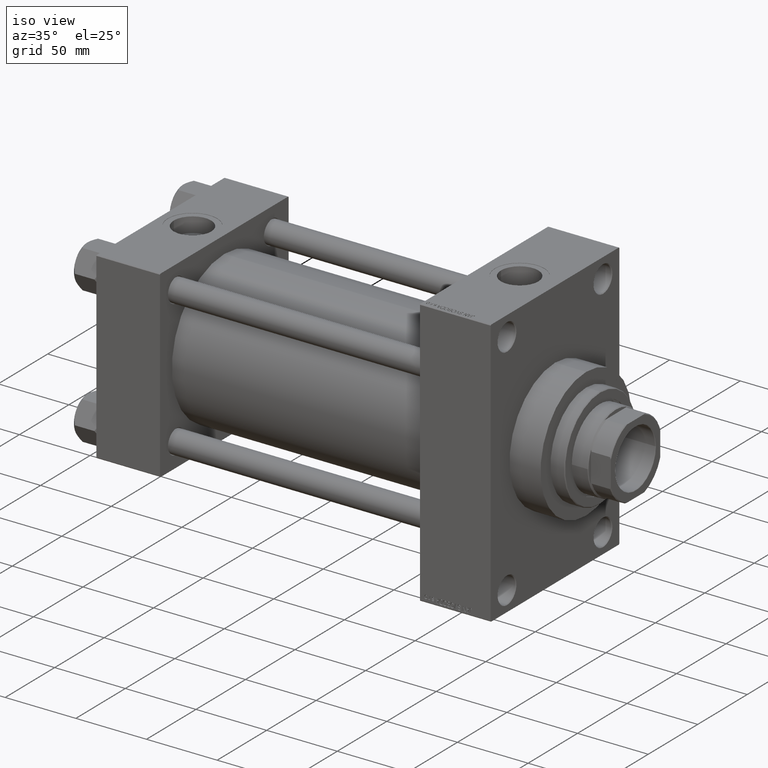
[diagram: clean part render]
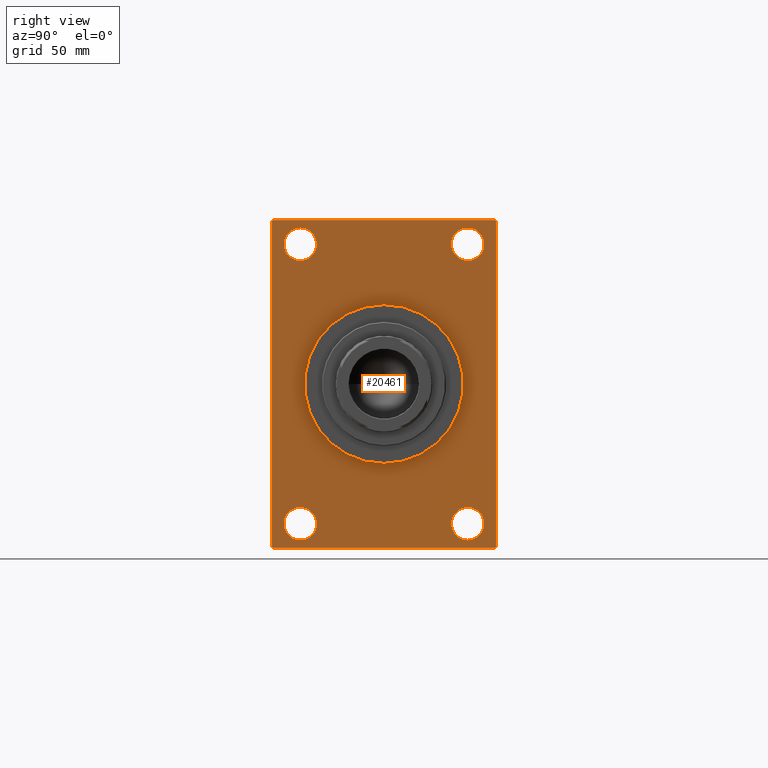
[diagram: tour spotlight — one face highlighted and labeled with its STEP entity id]
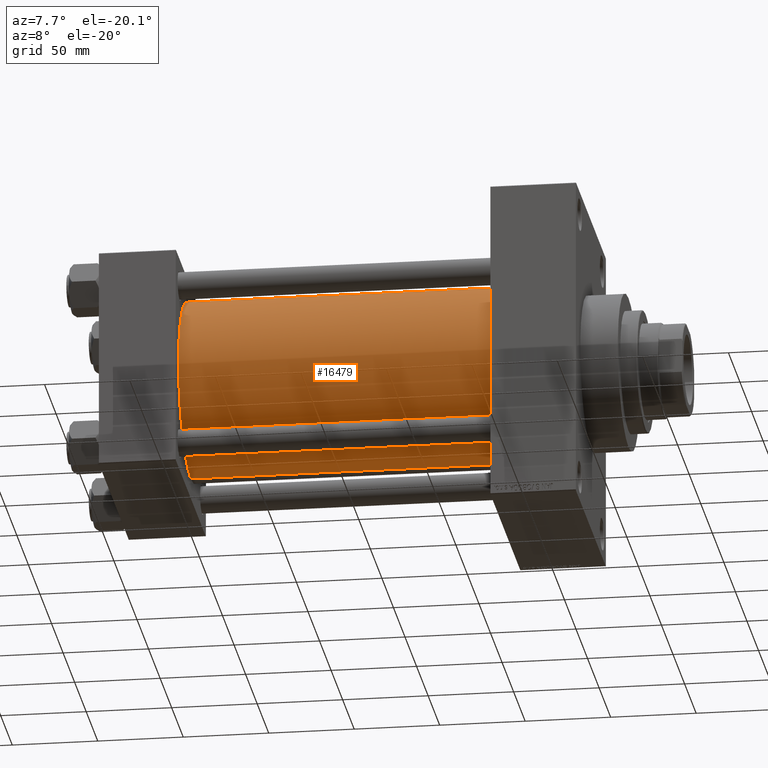
[diagram: tour spotlight — one face highlighted and labeled with its STEP entity id]
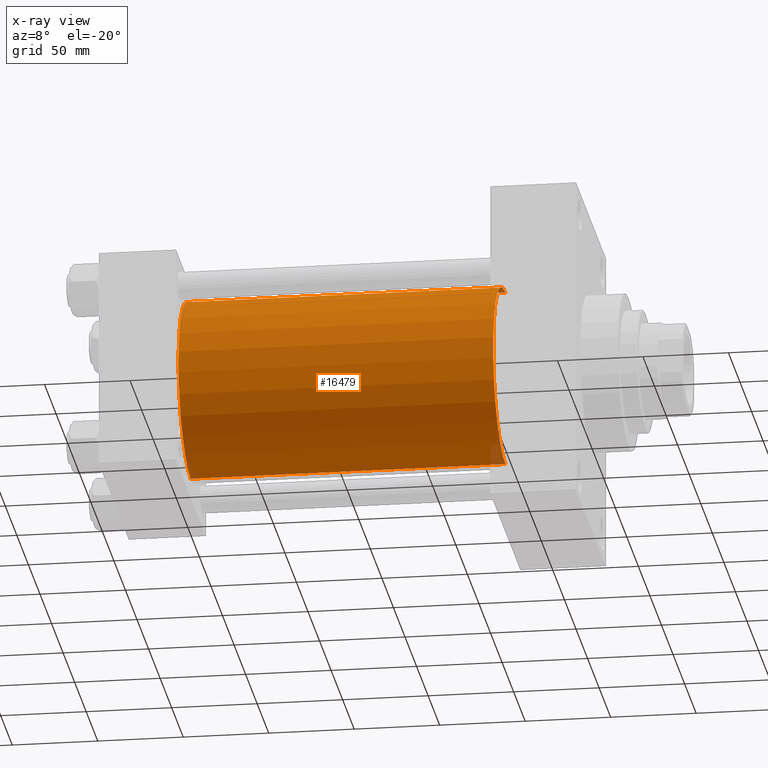
[diagram: x-ray of the same camera — body ghosted, this tour face saturated]
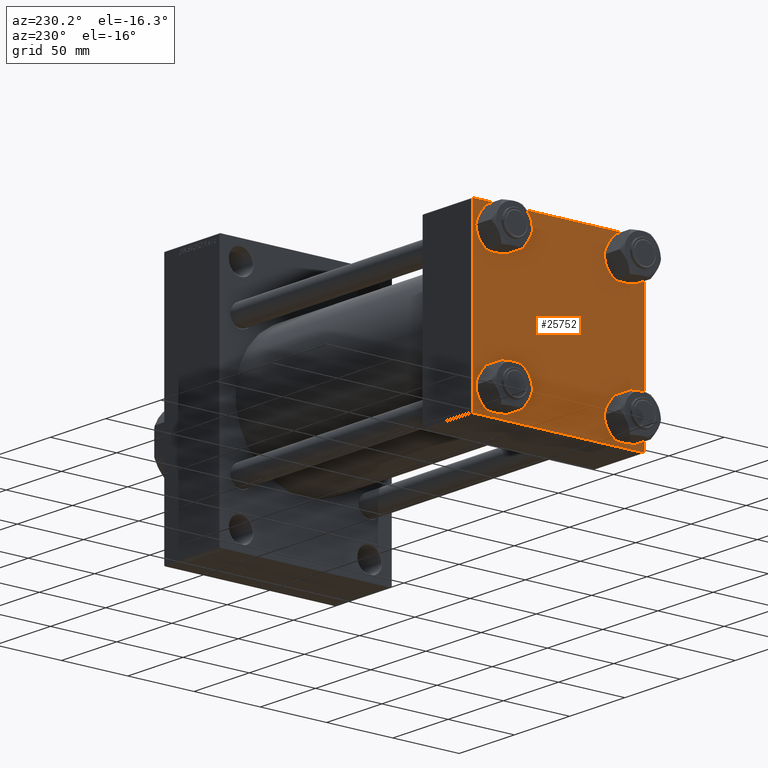
[diagram: tour spotlight — one face highlighted and labeled with its STEP entity id]
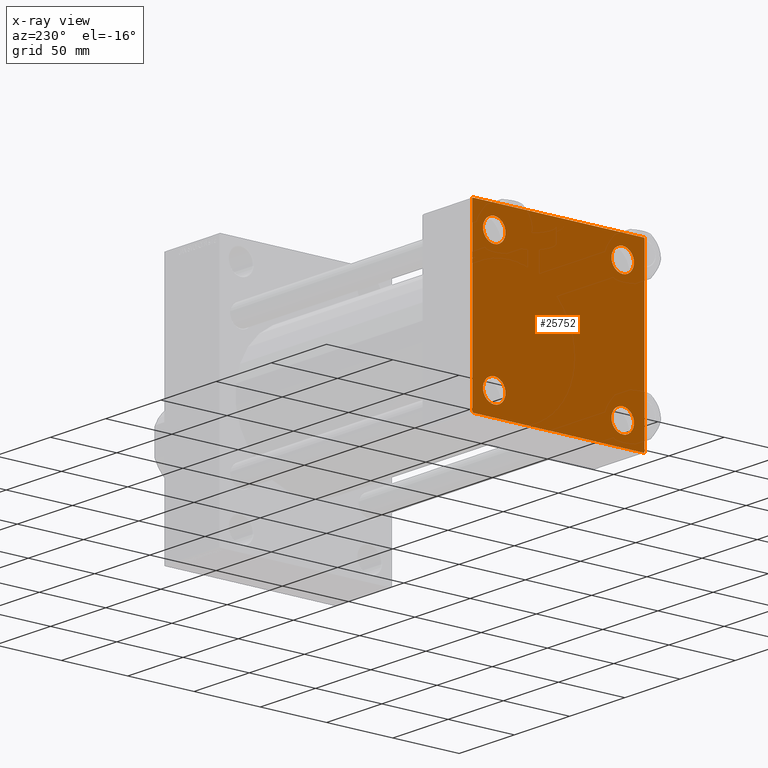
[diagram: x-ray of the same camera — body ghosted, this tour face saturated]
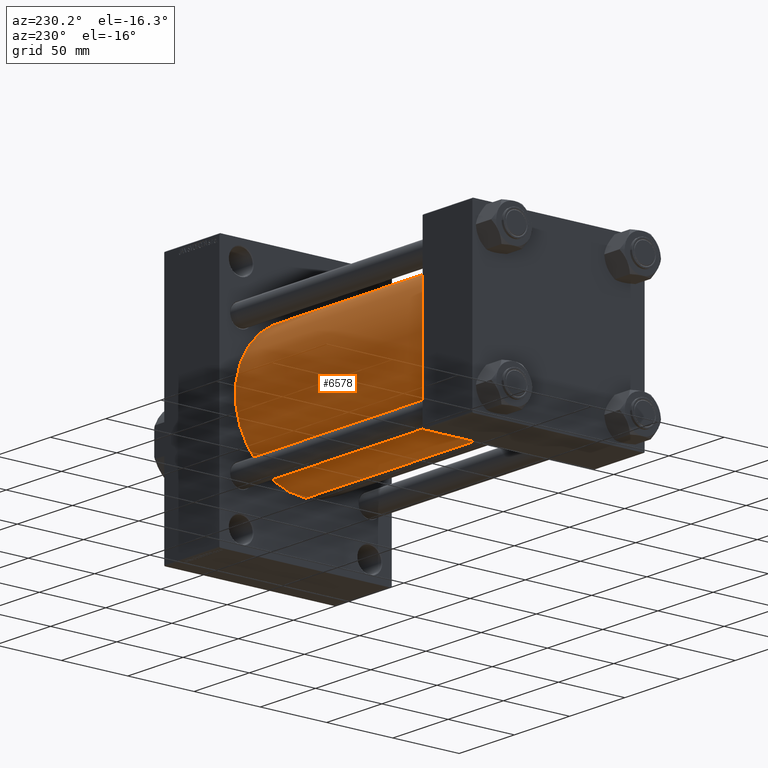
[diagram: tour spotlight — one face highlighted and labeled with its STEP entity id]
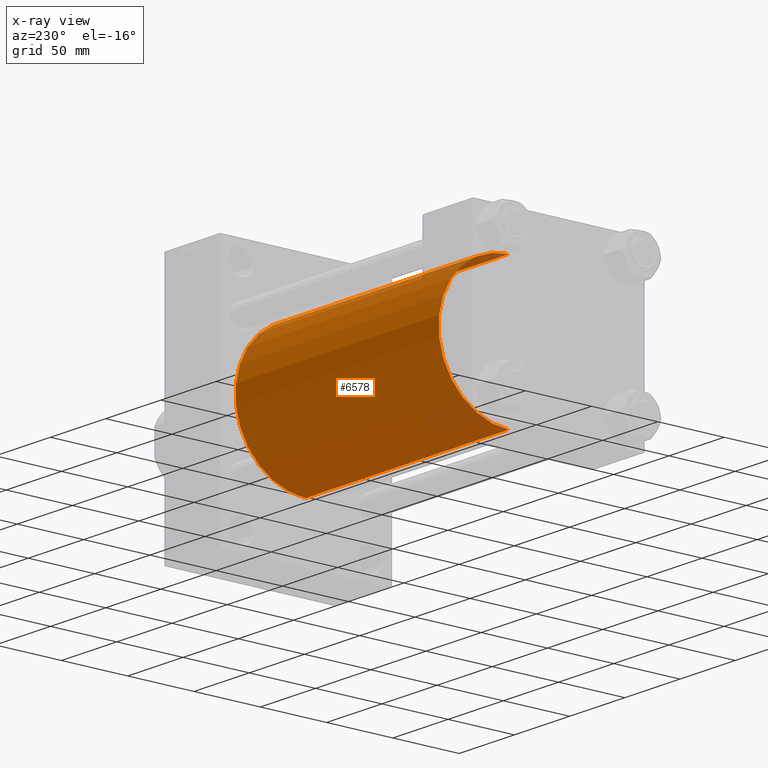
[diagram: x-ray of the same camera — body ghosted, this tour face saturated]
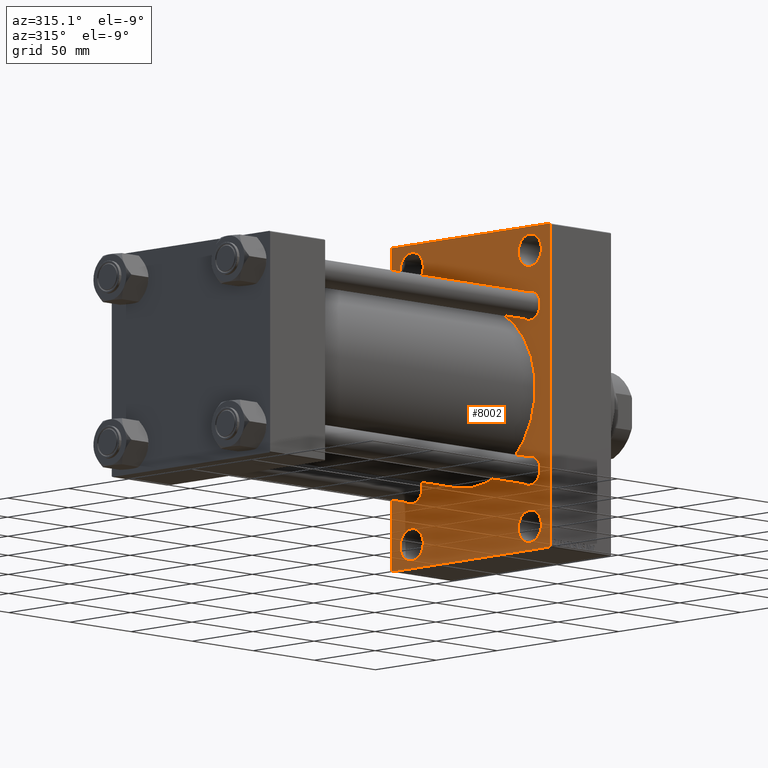
[diagram: tour spotlight — one face highlighted and labeled with its STEP entity id]
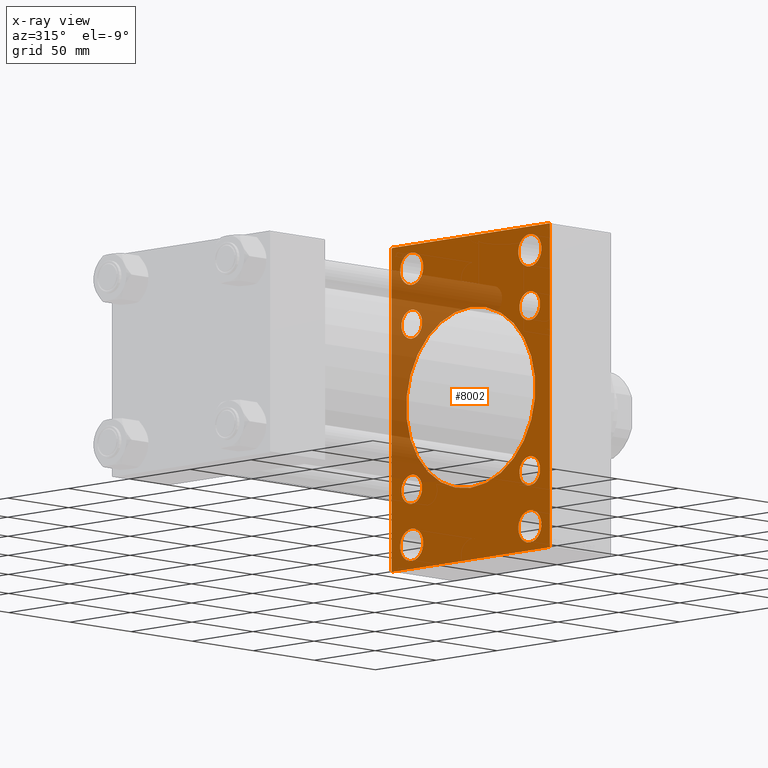
[diagram: x-ray of the same camera — body ghosted, this tour face saturated]
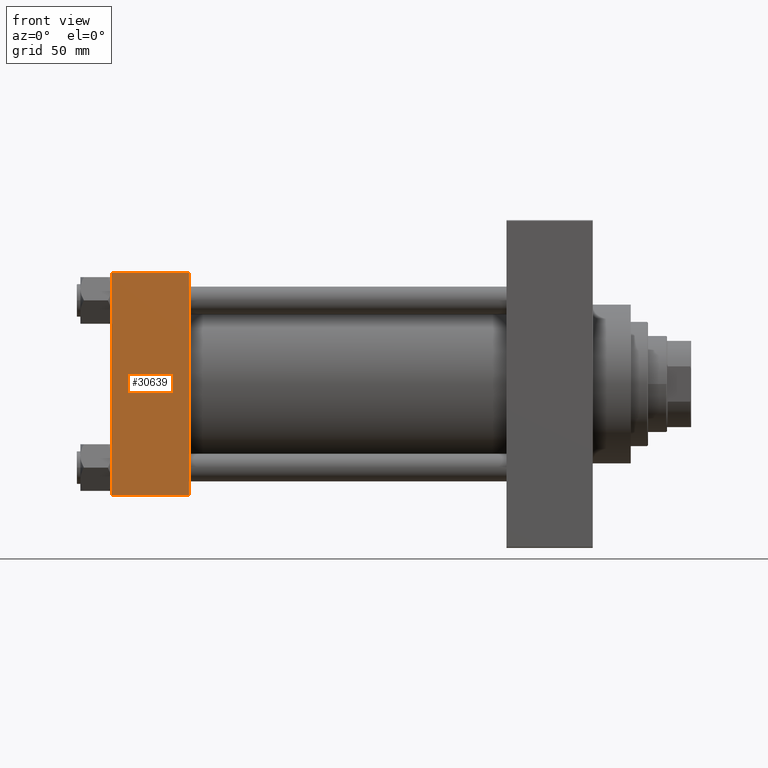
[diagram: tour spotlight — one face highlighted and labeled with its STEP entity id]
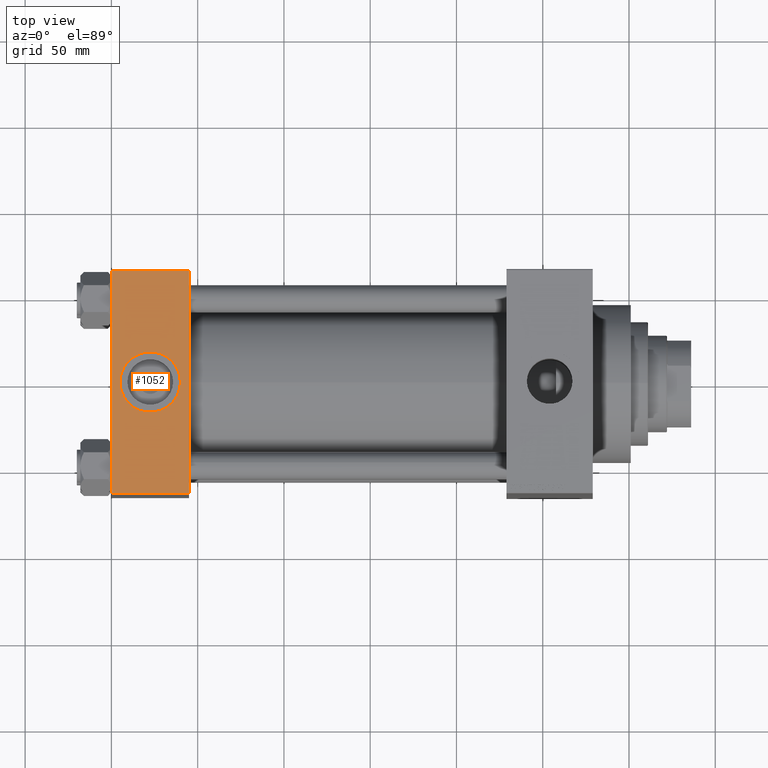
[diagram: tour spotlight — one face highlighted and labeled with its STEP entity id]
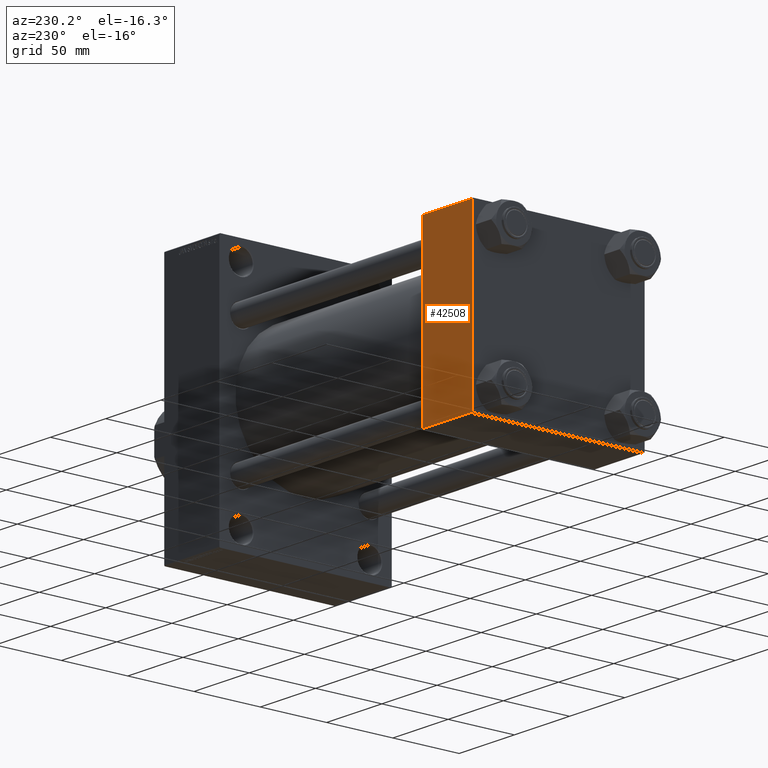
[diagram: tour spotlight — one face highlighted and labeled with its STEP entity id]
A machine part: a face-by-face anatomy tour. The part has 1151 B-rep faces; the first image is the clean iso view, then the 8 largest visible faces are spotlighted one at a time (largest first), each with its STEP entity span.

Face 1 — right view, entity #20461. In plain terms, the highlighted planar face has unit normal (-1, 0, 0).
Definition (entity closure, byte-faithful):
#266 = VERTEX_POINT ( 'NONE', #2524 ) ;
#477 = AXIS2_PLACEMENT_3D ( 'NONE', #17193, #27799, #31903 ) ;
#594 = LINE ( 'NONE', #15322, #32099 ) ;
#1554 = EDGE_LOOP ( 'NONE', ( #8671, #44883 ) ) ;
#1573 = VERTEX_POINT ( 'NONE', #10190 ) ;
#1969 = DIRECTION ( 'NONE',  ( -1.000000000000000000, 0.000000000000000000, -0.000000000000000000 ) ) ;
#2020 = VECTOR ( 'NONE', #32526, 1000.000000000000114 ) ;
#2211 = CARTESIAN_POINT ( 'NONE',  ( 278.9999999999999432, -48.50000000000000000, 71.50000000000000000 ) ) ;
#2322 = FACE_BOUND ( 'NONE', #1554, .T. ) ;
#2524 = CARTESIAN_POINT ( 'NONE',  ( 278.9999999999999432, -65.00000000000001421, -94.50000000000008527 ) ) ;
#2717 = DIRECTION ( 'NONE',  ( 0.000000000000000000, 0.000000000000000000, -1.000000000000000000 ) ) ;
#3434 = CARTESIAN_POINT ( 'NONE',  ( 278.9999999999999432, 0.000000000000000000, 46.00000000000000000 ) ) ;
#3470 = ORIENTED_EDGE ( 'NONE', *, *, #21737, .T. ) ;
#3571 = CARTESIAN_POINT ( 'NONE',  ( 278.9999999999999432, 64.50000000000002842, 94.99999999999997158 ) ) ;
#3709 = ORIENTED_EDGE ( 'NONE', *, *, #41921, .T. ) ;
#3822 = LINE ( 'NONE', #44605, #6531 ) ;
#5396 = AXIS2_PLACEMENT_3D ( 'NONE', #35882, #5971, #46746 ) ;
#5451 = CARTESIAN_POINT ( 'NONE',  ( 278.9999999999999432, 64.49999999999998579, -95.00000000000001421 ) ) ;
#5794 = DIRECTION ( 'NONE',  ( 0.000000000000000000, 0.000000000000000000, 1.000000000000000000 ) ) ;
#5971 = DIRECTION ( 'NONE',  ( -1.000000000000000000, 0.000000000000000000, -0.000000000000000000 ) ) ;
#6531 = VECTOR ( 'NONE', #18546, 1000.000000000000000 ) ;
#6589 = EDGE_CURVE ( 'NONE', #29247, #11063, #26139, .T. ) ;
#6723 = VERTEX_POINT ( 'NONE', #12148 ) ;
#7337 = CARTESIAN_POINT ( 'NONE',  ( 278.9999999999999432, 64.99999999999998579, -95.00000000000001421 ) ) ;
#8036 = DIRECTION ( 'NONE',  ( 0.000000000000000000, 0.000000000000000000, -1.000000000000000000 ) ) ;
#8306 = EDGE_CURVE ( 'NONE', #29247, #11203, #15892, .T. ) ;
#8412 = DIRECTION ( 'NONE',  ( -0.000000000000000000, 0.7071067811865573427, 0.7071067811865378028 ) ) ;
#8427 = VECTOR ( 'NONE', #10303, 1000.000000000000000 ) ;
#8671 = ORIENTED_EDGE ( 'NONE', *, *, #33002, .T. ) ;
#9173 = EDGE_CURVE ( 'NONE', #12069, #28959, #24160, .T. ) ;
#10190 = CARTESIAN_POINT ( 'NONE',  ( 278.9999999999999432, 48.50000000000000711, 71.50000000000000000 ) ) ;
#10303 = DIRECTION ( 'NONE',  ( 0.000000000000000000, 0.000000000000000000, -1.000000000000000000 ) ) ;
#10373 = CIRCLE ( 'NONE', #21959, 9.500000000000063949 ) ;
#10468 = ORIENTED_EDGE ( 'NONE', *, *, #41104, .T. ) ;
#10774 = CIRCLE ( 'NONE', #5396, 9.500000000000008882 ) ;
#10969 = EDGE_LOOP ( 'NONE', ( #22320, #36463 ) ) ;
#11063 = VERTEX_POINT ( 'NONE', #31616 ) ;
#11203 = VERTEX_POINT ( 'NONE', #45308 ) ;
#11506 = CARTESIAN_POINT ( 'NONE',  ( 278.9999999999999432, -64.50000000000008527, 94.99999999999997158 ) ) ;
#11733 = VECTOR ( 'NONE', #40632, 1000.000000000000000 ) ;
#11756 = EDGE_CURVE ( 'NONE', #21520, #11203, #3822, .T. ) ;
#12069 = VERTEX_POINT ( 'NONE', #33437 ) ;
#12096 = ORIENTED_EDGE ( 'NONE', *, *, #8306, .T. ) ;
#12148 = CARTESIAN_POINT ( 'NONE',  ( 278.9999999999999432, 64.50000000000002842, 94.99999999999997158 ) ) ;
#12604 = DIRECTION ( 'NONE',  ( 0.000000000000000000, 0.7071067811865868746, -0.7071067811865081598 ) ) ;
#12950 = ORIENTED_EDGE ( 'NONE', *, *, #11756, .F. ) ;
#12980 = VECTOR ( 'NONE', #21633, 1000.000000000000000 ) ;
#13372 = AXIS2_PLACEMENT_3D ( 'NONE', #38847, #38375, #5794 ) ;
#14295 = CARTESIAN_POINT ( 'NONE',  ( 278.9999999999999432, 48.50000000000000711, 90.50000000000001421 ) ) ;
#14307 = VERTEX_POINT ( 'NONE', #44249 ) ;
#14389 = DIRECTION ( 'NONE',  ( -1.000000000000000000, 0.000000000000000000, -0.000000000000000000 ) ) ;
#14429 = EDGE_CURVE ( 'NONE', #266, #11063, #23941, .T. ) ;
#15322 = CARTESIAN_POINT ( 'NONE',  ( 278.9999999999999432, -65.00000000000001421, 94.49999999999997158 ) ) ;
#15492 = CIRCLE ( 'NONE', #42460, 46.00000000000000000 ) ;
#15892 = LINE ( 'NONE', #30604, #27216 ) ;
#16700 = DIRECTION ( 'NONE',  ( 0.000000000000000000, 0.000000000000000000, 1.000000000000000000 ) ) ;
#16750 = AXIS2_PLACEMENT_3D ( 'NONE', #32267, #17560, #33933 ) ;
#16817 = FACE_BOUND ( 'NONE', #23225, .T. ) ;
#17193 = CARTESIAN_POINT ( 'NONE',  ( 278.9999999999999432, 48.50000000000000711, 81.00000000000000000 ) ) ;
#17224 = ORIENTED_EDGE ( 'NONE', *, *, #9173, .T. ) ;
#17560 = DIRECTION ( 'NONE',  ( -1.000000000000000000, 0.000000000000000000, -0.000000000000000000 ) ) ;
#17813 = LINE ( 'NONE', #3571, #2020 ) ;
#17880 = CARTESIAN_POINT ( 'NONE',  ( 278.9999999999999432, 48.50000000000000711, -81.00000000000001421 ) ) ;
#18023 = AXIS2_PLACEMENT_3D ( 'NONE', #30076, #19240, #40479 ) ;
#18243 = CARTESIAN_POINT ( 'NONE',  ( 278.9999999999999432, 64.99999999999997158, 94.99999999999997158 ) ) ;
#18546 = DIRECTION ( 'NONE',  ( 0.000000000000000000, 7.304098846218135653E-17, -1.000000000000000000 ) ) ;
#19240 = DIRECTION ( 'NONE',  ( -1.000000000000000000, 0.000000000000000000, -0.000000000000000000 ) ) ;
#20093 = CARTESIAN_POINT ( 'NONE',  ( 278.9999999999999432, -64.50000000000001421, -95.00000000000002842 ) ) ;
#20331 = CARTESIAN_POINT ( 'NONE',  ( 278.9999999999999432, 48.50000000000000711, 81.00000000000000000 ) ) ;
#20461 = ADVANCED_FACE ( 'NONE', ( #38771, #16817, #31523, #2322, #27656, #38295 ), #42159, .F. ) ;
#20931 = LINE ( 'NONE', #35645, #8427 ) ;
#21520 = VERTEX_POINT ( 'NONE', #37303 ) ;
#21633 = DIRECTION ( 'NONE',  ( 0.000000000000000000, -1.000000000000000000, 0.000000000000000000 ) ) ;
#21737 = EDGE_CURVE ( 'NONE', #39231, #24156, #29862, .T. ) ;
#21959 = AXIS2_PLACEMENT_3D ( 'NONE', #17880, #47574, #43711 ) ;
#22320 = ORIENTED_EDGE ( 'NONE', *, *, #40450, .F. ) ;
#23035 = ORIENTED_EDGE ( 'NONE', *, *, #31796, .T. ) ;
#23225 = EDGE_LOOP ( 'NONE', ( #10468, #3470 ) ) ;
#23856 = EDGE_LOOP ( 'NONE', ( #44562, #27632 ) ) ;
#23941 = LINE ( 'NONE', #20093, #32805 ) ;
#24156 = VERTEX_POINT ( 'NONE', #35851 ) ;
#24160 = CIRCLE ( 'NONE', #13372, 9.500000000000063949 ) ;
#24924 = DIRECTION ( 'NONE',  ( 1.000000000000000000, 0.000000000000000000, 0.000000000000000000 ) ) ;
#25377 = EDGE_CURVE ( 'NONE', #40475, #14307, #38817, .T. ) ;
#25962 = AXIS2_PLACEMENT_3D ( 'NONE', #20331, #1969, #16700 ) ;
#26078 = ORIENTED_EDGE ( 'NONE', *, *, #6589, .F. ) ;
#26139 = LINE ( 'NONE', #7337, #11733 ) ;
#26833 = CARTESIAN_POINT ( 'NONE',  ( 278.9999999999999432, 0.000000000000000000, 0.000000000000000000 ) ) ;
#27101 = EDGE_CURVE ( 'NONE', #28959, #12069, #10373, .T. ) ;
#27216 = VECTOR ( 'NONE', #8412, 1000.000000000000000 ) ;
#27300 = CARTESIAN_POINT ( 'NONE',  ( 278.9999999999999432, -65.00000000000001421, 94.49999999999997158 ) ) ;
#27420 = DIRECTION ( 'NONE',  ( -0.000000000000000000, 0.000000000000000000, 1.000000000000000000 ) ) ;
#27632 = ORIENTED_EDGE ( 'NONE', *, *, #42976, .T. ) ;
#27656 = FACE_BOUND ( 'NONE', #10969, .T. ) ;
#27710 = VERTEX_POINT ( 'NONE', #46337 ) ;
#27799 = DIRECTION ( 'NONE',  ( -1.000000000000000000, 0.000000000000000000, -0.000000000000000000 ) ) ;
#28135 = DIRECTION ( 'NONE',  ( 0.000000000000000000, 0.000000000000000000, 1.000000000000000000 ) ) ;
#28353 = VERTEX_POINT ( 'NONE', #14295 ) ;
#28417 = VERTEX_POINT ( 'NONE', #3434 ) ;
#28959 = VERTEX_POINT ( 'NONE', #38567 ) ;
#28961 = CIRCLE ( 'NONE', #477, 9.500000000000008882 ) ;
#29247 = VERTEX_POINT ( 'NONE', #5451 ) ;
#29862 = CIRCLE ( 'NONE', #16750, 9.500000000000063949 ) ;
#30026 = DIRECTION ( 'NONE',  ( -0.000000000000000000, -0.7071067811864985009, -0.7071067811865965336 ) ) ;
#30076 = CARTESIAN_POINT ( 'NONE',  ( 278.9999999999999432, -48.50000000000000000, 81.00000000000000000 ) ) ;
#30313 = EDGE_CURVE ( 'NONE', #28353, #1573, #28961, .T. ) ;
#30450 = DIRECTION ( 'NONE',  ( 1.000000000000000000, 0.000000000000000000, 0.000000000000000000 ) ) ;
#30550 = AXIS2_PLACEMENT_3D ( 'NONE', #31039, #34672, #27420 ) ;
#30604 = CARTESIAN_POINT ( 'NONE',  ( 278.9999999999999432, 64.99999999999998579, -94.50000000000002842 ) ) ;
#30990 = CARTESIAN_POINT ( 'NONE',  ( 278.9999999999999432, -48.49999999999999289, -71.49999999999995737 ) ) ;
#31039 = CARTESIAN_POINT ( 'NONE',  ( 278.9999999999999432, 0.000000000000000000, 0.000000000000000000 ) ) ;
#31395 = EDGE_CURVE ( 'NONE', #21520, #6723, #17813, .T. ) ;
#31523 = FACE_BOUND ( 'NONE', #40886, .T. ) ;
#31616 = CARTESIAN_POINT ( 'NONE',  ( 278.9999999999999432, -64.50000000000001421, -95.00000000000002842 ) ) ;
#31796 = EDGE_CURVE ( 'NONE', #45020, #32984, #594, .T. ) ;
#31903 = DIRECTION ( 'NONE',  ( 0.000000000000000000, 0.000000000000000000, 1.000000000000000000 ) ) ;
#31973 = ORIENTED_EDGE ( 'NONE', *, *, #27101, .T. ) ;
#32099 = VECTOR ( 'NONE', #30026, 1000.000000000000114 ) ;
#32267 = CARTESIAN_POINT ( 'NONE',  ( 278.9999999999999432, -48.49999999999999289, -81.00000000000001421 ) ) ;
#32468 = ORIENTED_EDGE ( 'NONE', *, *, #14429, .T. ) ;
#32526 = DIRECTION ( 'NONE',  ( 0.000000000000000000, -0.7071067811865474617, 0.7071067811865474617 ) ) ;
#32805 = VECTOR ( 'NONE', #12604, 1000.000000000000000 ) ;
#32984 = VERTEX_POINT ( 'NONE', #27300 ) ;
#33002 = EDGE_CURVE ( 'NONE', #1573, #28353, #46783, .T. ) ;
#33437 = CARTESIAN_POINT ( 'NONE',  ( 278.9999999999999432, 48.50000000000000711, -90.50000000000008527 ) ) ;
#33826 = AXIS2_PLACEMENT_3D ( 'NONE', #39256, #14389, #28135 ) ;
#33933 = DIRECTION ( 'NONE',  ( 0.000000000000000000, 0.000000000000000000, 1.000000000000000000 ) ) ;
#34672 = DIRECTION ( 'NONE',  ( -1.000000000000000000, 0.000000000000000000, -0.000000000000000000 ) ) ;
#35645 = CARTESIAN_POINT ( 'NONE',  ( 278.9999999999999432, -65.00000000000001421, 94.99999999999997158 ) ) ;
#35851 = CARTESIAN_POINT ( 'NONE',  ( 278.9999999999999432, -48.49999999999999289, -90.50000000000008527 ) ) ;
#35882 = CARTESIAN_POINT ( 'NONE',  ( 278.9999999999999432, -48.50000000000000000, 81.00000000000000000 ) ) ;
#36463 = ORIENTED_EDGE ( 'NONE', *, *, #45574, .F. ) ;
#36875 = ORIENTED_EDGE ( 'NONE', *, *, #31395, .T. ) ;
#37303 = CARTESIAN_POINT ( 'NONE',  ( 278.9999999999999432, 64.99999999999997158, 94.50000000000002842 ) ) ;
#38295 = FACE_OUTER_BOUND ( 'NONE', #40131, .T. ) ;
#38375 = DIRECTION ( 'NONE',  ( -1.000000000000000000, 0.000000000000000000, -0.000000000000000000 ) ) ;
#38567 = CARTESIAN_POINT ( 'NONE',  ( 278.9999999999999432, 48.50000000000000711, -71.49999999999995737 ) ) ;
#38771 = FACE_BOUND ( 'NONE', #23856, .T. ) ;
#38817 = CIRCLE ( 'NONE', #18023, 9.500000000000008882 ) ;
#38847 = CARTESIAN_POINT ( 'NONE',  ( 278.9999999999999432, 48.50000000000000711, -81.00000000000001421 ) ) ;
#39231 = VERTEX_POINT ( 'NONE', #30990 ) ;
#39256 = CARTESIAN_POINT ( 'NONE',  ( 278.9999999999999432, -48.49999999999999289, -81.00000000000001421 ) ) ;
#39709 = ORIENTED_EDGE ( 'NONE', *, *, #39966, .T. ) ;
#39966 = EDGE_CURVE ( 'NONE', #6723, #45020, #43835, .T. ) ;
#40131 = EDGE_LOOP ( 'NONE', ( #3709, #32468, #26078, #12096, #12950, #36875, #39709, #23035 ) ) ;
#40450 = EDGE_CURVE ( 'NONE', #28417, #27710, #46157, .T. ) ;
#40475 = VERTEX_POINT ( 'NONE', #2211 ) ;
#40479 = DIRECTION ( 'NONE',  ( 0.000000000000000000, 0.000000000000000000, 1.000000000000000000 ) ) ;
#40632 = DIRECTION ( 'NONE',  ( 0.000000000000000000, -1.000000000000000000, -1.067522139062650425E-16 ) ) ;
#40886 = EDGE_LOOP ( 'NONE', ( #17224, #31973 ) ) ;
#41104 = EDGE_CURVE ( 'NONE', #24156, #39231, #41536, .T. ) ;
#41536 = CIRCLE ( 'NONE', #33826, 9.500000000000063949 ) ;
#41921 = EDGE_CURVE ( 'NONE', #32984, #266, #20931, .T. ) ;
#42159 = PLANE ( 'NONE',  #30550 ) ;
#42460 = AXIS2_PLACEMENT_3D ( 'NONE', #42784, #24924, #2717 ) ;
#42784 = CARTESIAN_POINT ( 'NONE',  ( 278.9999999999999432, 0.000000000000000000, 0.000000000000000000 ) ) ;
#42976 = EDGE_CURVE ( 'NONE', #14307, #40475, #10774, .T. ) ;
#43087 = AXIS2_PLACEMENT_3D ( 'NONE', #26833, #30450, #8036 ) ;
#43711 = DIRECTION ( 'NONE',  ( 0.000000000000000000, 0.000000000000000000, 1.000000000000000000 ) ) ;
#43835 = LINE ( 'NONE', #18243, #12980 ) ;
#44249 = CARTESIAN_POINT ( 'NONE',  ( 278.9999999999999432, -48.50000000000000000, 90.50000000000001421 ) ) ;
#44562 = ORIENTED_EDGE ( 'NONE', *, *, #25377, .T. ) ;
#44605 = CARTESIAN_POINT ( 'NONE',  ( 278.9999999999999432, 64.99999999999997158, 94.99999999999997158 ) ) ;
#44883 = ORIENTED_EDGE ( 'NONE', *, *, #30313, .T. ) ;
#45020 = VERTEX_POINT ( 'NONE', #11506 ) ;
#45308 = CARTESIAN_POINT ( 'NONE',  ( 278.9999999999999432, 64.99999999999998579, -94.50000000000002842 ) ) ;
#45574 = EDGE_CURVE ( 'NONE', #27710, #28417, #15492, .T. ) ;
#46157 = CIRCLE ( 'NONE', #43087, 46.00000000000000000 ) ;
#46337 = CARTESIAN_POINT ( 'NONE',  ( 278.9999999999999432, 5.633375276077824704E-15, -46.00000000000000000 ) ) ;
#46746 = DIRECTION ( 'NONE',  ( 0.000000000000000000, 0.000000000000000000, 1.000000000000000000 ) ) ;
#46783 = CIRCLE ( 'NONE', #25962, 9.500000000000008882 ) ;
#47574 = DIRECTION ( 'NONE',  ( -1.000000000000000000, 0.000000000000000000, -0.000000000000000000 ) ) ;

Face 2 — auxiliary view, entity #16479. An x-ray twin of the same camera follows (body ghosted, this face saturated) — the face is partly hidden behind the body. In plain terms, the highlighted cylindrical surface (partial cylindrical patch) has radius 53 mm, axis along (-1, -0, -0).
Definition (entity closure, byte-faithful):
#4327 = AXIS2_PLACEMENT_3D ( 'NONE', #21161, #17056, #32249 ) ;
#5642 = ORIENTED_EDGE ( 'NONE', *, *, #33483, .T. ) ;
#9459 = CARTESIAN_POINT ( 'NONE',  ( 228.9999999999999716, -2.602085213965210642E-15, 0.000000000000000000 ) ) ;
#9929 = DIRECTION ( 'NONE',  ( -1.000000000000000000, -0.000000000000000000, -0.000000000000000000 ) ) ;
#10031 = VERTEX_POINT ( 'NONE', #33996 ) ;
#11989 = LINE ( 'NONE', #27638, #35757 ) ;
#14315 = CARTESIAN_POINT ( 'NONE',  ( 44.99999999999998579, -2.602085213965210642E-15, 0.000000000000000000 ) ) ;
#14324 = VERTEX_POINT ( 'NONE', #37003 ) ;
#14695 = EDGE_CURVE ( 'NONE', #14324, #10031, #42700, .T. ) ;
#15020 = EDGE_CURVE ( 'NONE', #14324, #40585, #32039, .T. ) ;
#16315 = DIRECTION ( 'NONE',  ( -1.000000000000000000, -0.000000000000000000, -0.000000000000000000 ) ) ;
#16479 = ADVANCED_FACE ( 'NONE', ( #39133 ), #16932, .T. ) ;
#16932 = CYLINDRICAL_SURFACE ( 'NONE', #33526, 53.00000000000000711 ) ;
#17056 = DIRECTION ( 'NONE',  ( 1.000000000000000000, 0.000000000000000000, 0.000000000000000000 ) ) ;
#17411 = DIRECTION ( 'NONE',  ( 0.000000000000000000, 0.000000000000000000, 1.000000000000000000 ) ) ;
#17695 = DIRECTION ( 'NONE',  ( 0.000000000000000000, 0.000000000000000000, 1.000000000000000000 ) ) ;
#18735 = ORIENTED_EDGE ( 'NONE', *, *, #25577, .F. ) ;
#21161 = CARTESIAN_POINT ( 'NONE',  ( 228.9999999999999716, -2.602085213965210642E-15, 0.000000000000000000 ) ) ;
#21287 = VERTEX_POINT ( 'NONE', #45312 ) ;
#23410 = CARTESIAN_POINT ( 'NONE',  ( 228.9999999999999716, -2.602085213965210642E-15, 53.00000000000000711 ) ) ;
#25577 = EDGE_CURVE ( 'NONE', #40585, #21287, #11989, .T. ) ;
#25995 = AXIS2_PLACEMENT_3D ( 'NONE', #14315, #33122, #17695 ) ;
#26590 = EDGE_LOOP ( 'NONE', ( #18735, #36332, #44487, #5642 ) ) ;
#27638 = CARTESIAN_POINT ( 'NONE',  ( 228.9999999999999716, 3.888542821515762466E-15, -53.00000000000000711 ) ) ;
#28977 = CARTESIAN_POINT ( 'NONE',  ( 228.9999999999999716, 3.888542821515762466E-15, -53.00000000000000711 ) ) ;
#29853 = CIRCLE ( 'NONE', #25995, 53.00000000000000711 ) ;
#32039 = CIRCLE ( 'NONE', #4327, 53.00000000000000711 ) ;
#32249 = DIRECTION ( 'NONE',  ( 0.000000000000000000, 0.000000000000000000, -1.000000000000000000 ) ) ;
#33122 = DIRECTION ( 'NONE',  ( 1.000000000000000000, -0.000000000000000000, 0.000000000000000000 ) ) ;
#33483 = EDGE_CURVE ( 'NONE', #10031, #21287, #29853, .T. ) ;
#33526 = AXIS2_PLACEMENT_3D ( 'NONE', #9459, #9929, #17411 ) ;
#33996 = CARTESIAN_POINT ( 'NONE',  ( 44.99999999999998579, -2.602085213965210642E-15, 53.00000000000000711 ) ) ;
#34510 = DIRECTION ( 'NONE',  ( -1.000000000000000000, -0.000000000000000000, -0.000000000000000000 ) ) ;
#35757 = VECTOR ( 'NONE', #16315, 1000.000000000000000 ) ;
#36332 = ORIENTED_EDGE ( 'NONE', *, *, #15020, .F. ) ;
#37003 = CARTESIAN_POINT ( 'NONE',  ( 228.9999999999999716, -2.602085213965210642E-15, 53.00000000000000711 ) ) ;
#39133 = FACE_OUTER_BOUND ( 'NONE', #26590, .T. ) ;
#40585 = VERTEX_POINT ( 'NONE', #28977 ) ;
#42700 = LINE ( 'NONE', #23410, #45929 ) ;
#44487 = ORIENTED_EDGE ( 'NONE', *, *, #14695, .T. ) ;
#45312 = CARTESIAN_POINT ( 'NONE',  ( 44.99999999999998579, 3.888542821515762466E-15, -53.00000000000000711 ) ) ;
#45929 = VECTOR ( 'NONE', #34510, 1000.000000000000000 ) ;

Face 3 — auxiliary view, entity #25752. An x-ray twin of the same camera follows (body ghosted, this face saturated) — the face is partly hidden behind the body. In plain terms, the highlighted planar face has unit normal (-1, 0, 0).
Definition (entity closure, byte-faithful):
#104 = FACE_BOUND ( 'NONE', #9682, .T. ) ;
#119 = CARTESIAN_POINT ( 'NONE',  ( 0.000000000000000000, 48.45000000000000995, 48.45000000000001705 ) ) ;
#452 = DIRECTION ( 'NONE',  ( 1.000000000000000000, -0.000000000000000000, 0.000000000000000000 ) ) ;
#553 = VERTEX_POINT ( 'NONE', #17232 ) ;
#602 = CIRCLE ( 'NONE', #22199, 8.500000000000007105 ) ;
#1419 = CIRCLE ( 'NONE', #46915, 8.500000000000007105 ) ;
#1439 = CARTESIAN_POINT ( 'NONE',  ( 0.000000000000000000, 64.74999999999997158, -64.74999999999997158 ) ) ;
#1541 = ORIENTED_EDGE ( 'NONE', *, *, #28057, .T. ) ;
#2079 = EDGE_CURVE ( 'NONE', #17757, #7894, #15555, .T. ) ;
#3195 = AXIS2_PLACEMENT_3D ( 'NONE', #45508, #33468, #26692 ) ;
#3558 = DIRECTION ( 'NONE',  ( 1.000000000000000000, -0.000000000000000000, 0.000000000000000000 ) ) ;
#3837 = CARTESIAN_POINT ( 'NONE',  ( 0.000000000000000000, -48.44999999999999574, 48.45000000000003126 ) ) ;
#4203 = DIRECTION ( 'NONE',  ( 0.000000000000000000, 0.000000000000000000, -1.000000000000000000 ) ) ;
#4449 = VERTEX_POINT ( 'NONE', #8294 ) ;
#4515 = CARTESIAN_POINT ( 'NONE',  ( -0.000000000000000000, -64.74999999999819522, 64.75000000000179057 ) ) ;
#4821 = CARTESIAN_POINT ( 'NONE',  ( 0.000000000000000000, 48.45000000000000995, -56.95000000000002416 ) ) ;
#5012 = CARTESIAN_POINT ( 'NONE',  ( 0.000000000000000000, 64.49999999999997158, -64.99999999999998579 ) ) ;
#5124 = EDGE_LOOP ( 'NONE', ( #17480, #20851 ) ) ;
#5187 = CARTESIAN_POINT ( 'NONE',  ( 0.000000000000000000, -65.00000000000000000, 64.50000000000000000 ) ) ;
#6200 = CARTESIAN_POINT ( 'NONE',  ( 0.000000000000000000, -48.44999999999999574, 56.95000000000003837 ) ) ;
#6235 = VERTEX_POINT ( 'NONE', #25491 ) ;
#6302 = CARTESIAN_POINT ( 'NONE',  ( 0.000000000000000000, 48.45000000000000995, -48.45000000000001705 ) ) ;
#7092 = VECTOR ( 'NONE', #41376, 1000.000000000000000 ) ;
#7743 = CARTESIAN_POINT ( 'NONE',  ( 0.000000000000000000, 65.00000000000000000, 64.49999999999998579 ) ) ;
#7841 = LINE ( 'NONE', #11460, #7092 ) ;
#7894 = VERTEX_POINT ( 'NONE', #47368 ) ;
#8294 = CARTESIAN_POINT ( 'NONE',  ( 0.000000000000000000, -64.49999999999997158, 65.00000000000000000 ) ) ;
#9682 = EDGE_LOOP ( 'NONE', ( #16447, #20835 ) ) ;
#9749 = LINE ( 'NONE', #24468, #36075 ) ;
#10604 = DIRECTION ( 'NONE',  ( -0.000000000000000000, -0.7071067811865474617, -0.7071067811865474617 ) ) ;
#10802 = DIRECTION ( 'NONE',  ( -0.000000000000000000, 0.7071067811865672237, 0.7071067811865279218 ) ) ;
#10889 = EDGE_CURVE ( 'NONE', #6235, #37171, #40355, .T. ) ;
#10983 = FACE_OUTER_BOUND ( 'NONE', #25509, .T. ) ;
#11228 = DIRECTION ( 'NONE',  ( 1.000000000000000000, -0.000000000000000000, 0.000000000000000000 ) ) ;
#11460 = CARTESIAN_POINT ( 'NONE',  ( 0.000000000000000000, 65.00000000000000000, -64.99999999999998579 ) ) ;
#11858 = VECTOR ( 'NONE', #10802, 1000.000000000000000 ) ;
#11958 = CARTESIAN_POINT ( 'NONE',  ( 0.000000000000000000, 48.45000000000000995, 39.95000000000000284 ) ) ;
#12025 = ORIENTED_EDGE ( 'NONE', *, *, #10889, .T. ) ;
#12864 = CARTESIAN_POINT ( 'NONE',  ( 0.000000000000000000, 64.49999999999997158, 65.00000000000001421 ) ) ;
#13080 = ORIENTED_EDGE ( 'NONE', *, *, #27642, .T. ) ;
#13239 = AXIS2_PLACEMENT_3D ( 'NONE', #23131, #452, #33764 ) ;
#13455 = VERTEX_POINT ( 'NONE', #12864 ) ;
#13936 = CARTESIAN_POINT ( 'NONE',  ( 0.000000000000000000, -48.44999999999999574, -48.45000000000003126 ) ) ;
#14007 = VERTEX_POINT ( 'NONE', #4821 ) ;
#14296 = CARTESIAN_POINT ( 'NONE',  ( 0.000000000000000000, -64.75000000000176215, -64.74999999999816680 ) ) ;
#14378 = DIRECTION ( 'NONE',  ( 0.000000000000000000, 0.000000000000000000, 1.000000000000000000 ) ) ;
#14562 = VERTEX_POINT ( 'NONE', #7743 ) ;
#14599 = PLANE ( 'NONE',  #17286 ) ;
#15526 = AXIS2_PLACEMENT_3D ( 'NONE', #33716, #30074, #15603 ) ;
#15555 = CIRCLE ( 'NONE', #13239, 8.500000000000007105 ) ;
#15603 = DIRECTION ( 'NONE',  ( 0.000000000000000000, 0.000000000000000000, 1.000000000000000000 ) ) ;
#15665 = CARTESIAN_POINT ( 'NONE',  ( 0.000000000000000000, 48.45000000000000995, 56.95000000000002416 ) ) ;
#15722 = VECTOR ( 'NONE', #44684, 1000.000000000000000 ) ;
#16447 = ORIENTED_EDGE ( 'NONE', *, *, #29058, .T. ) ;
#16564 = VECTOR ( 'NONE', #4203, 1000.000000000000000 ) ;
#17232 = CARTESIAN_POINT ( 'NONE',  ( 0.000000000000000000, 48.45000000000000995, -39.95000000000000284 ) ) ;
#17286 = AXIS2_PLACEMENT_3D ( 'NONE', #44747, #18942, #22092 ) ;
#17480 = ORIENTED_EDGE ( 'NONE', *, *, #46329, .T. ) ;
#17649 = VERTEX_POINT ( 'NONE', #5012 ) ;
#17757 = VERTEX_POINT ( 'NONE', #6200 ) ;
#17902 = CARTESIAN_POINT ( 'NONE',  ( 0.000000000000000000, -48.44999999999999574, -56.95000000000003837 ) ) ;
#18110 = EDGE_LOOP ( 'NONE', ( #40787, #43700 ) ) ;
#18564 = DIRECTION ( 'NONE',  ( 1.000000000000000000, -0.000000000000000000, 0.000000000000000000 ) ) ;
#18699 = FACE_BOUND ( 'NONE', #18110, .T. ) ;
#18864 = LINE ( 'NONE', #41057, #35070 ) ;
#18942 = DIRECTION ( 'NONE',  ( -1.000000000000000000, 0.000000000000000000, -0.000000000000000000 ) ) ;
#19339 = DIRECTION ( 'NONE',  ( 0.000000000000000000, 0.7071067811865474617, -0.7071067811865474617 ) ) ;
#20571 = VECTOR ( 'NONE', #40493, 1000.000000000000000 ) ;
#20835 = ORIENTED_EDGE ( 'NONE', *, *, #46386, .T. ) ;
#20851 = ORIENTED_EDGE ( 'NONE', *, *, #39596, .T. ) ;
#21263 = AXIS2_PLACEMENT_3D ( 'NONE', #13936, #3558, #36149 ) ;
#21581 = VERTEX_POINT ( 'NONE', #5187 ) ;
#21637 = ORIENTED_EDGE ( 'NONE', *, *, #25368, .T. ) ;
#21883 = ORIENTED_EDGE ( 'NONE', *, *, #42622, .T. ) ;
#22092 = DIRECTION ( 'NONE',  ( -0.000000000000000000, 0.000000000000000000, 1.000000000000000000 ) ) ;
#22199 = AXIS2_PLACEMENT_3D ( 'NONE', #25707, #32706, #14378 ) ;
#22333 = DIRECTION ( 'NONE',  ( 0.000000000000000000, 0.000000000000000000, 1.000000000000000000 ) ) ;
#22560 = FACE_BOUND ( 'NONE', #43609, .T. ) ;
#23131 = CARTESIAN_POINT ( 'NONE',  ( 0.000000000000000000, -48.44999999999999574, 48.45000000000003126 ) ) ;
#23382 = CARTESIAN_POINT ( 'NONE',  ( 0.000000000000000000, -48.44999999999999574, -39.95000000000001705 ) ) ;
#24049 = CARTESIAN_POINT ( 'NONE',  ( 0.000000000000000000, 65.00000000000000000, -64.49999999999995737 ) ) ;
#24468 = CARTESIAN_POINT ( 'NONE',  ( 0.000000000000000000, 65.00000000000000000, 65.00000000000001421 ) ) ;
#24687 = CIRCLE ( 'NONE', #40875, 8.500000000000007105 ) ;
#25357 = ORIENTED_EDGE ( 'NONE', *, *, #43760, .T. ) ;
#25368 = EDGE_CURVE ( 'NONE', #21581, #4449, #36151, .T. ) ;
#25458 = CARTESIAN_POINT ( 'NONE',  ( 0.000000000000000000, 65.00000000000000000, 65.00000000000001421 ) ) ;
#25491 = CARTESIAN_POINT ( 'NONE',  ( 0.000000000000000000, -64.49999999999994316, -65.00000000000000000 ) ) ;
#25509 = EDGE_LOOP ( 'NONE', ( #1541, #21883, #32313, #12025, #44250, #21637, #43305, #13080 ) ) ;
#25707 = CARTESIAN_POINT ( 'NONE',  ( 0.000000000000000000, 48.45000000000000995, 48.45000000000001705 ) ) ;
#25752 = ADVANCED_FACE ( 'NONE', ( #22560, #104, #37036, #18699, #10983 ), #14599, .T. ) ;
#25768 = CARTESIAN_POINT ( 'NONE',  ( 0.000000000000000000, -65.00000000000000000, 65.00000000000000000 ) ) ;
#26692 = DIRECTION ( 'NONE',  ( 0.000000000000000000, 0.000000000000000000, 1.000000000000000000 ) ) ;
#27642 = EDGE_CURVE ( 'NONE', #13455, #14562, #18864, .T. ) ;
#28057 = EDGE_CURVE ( 'NONE', #14562, #36997, #29769, .T. ) ;
#28598 = ORIENTED_EDGE ( 'NONE', *, *, #2079, .T. ) ;
#28847 = CARTESIAN_POINT ( 'NONE',  ( 0.000000000000000000, -65.00000000000000000, -64.49999999999991473 ) ) ;
#29058 = EDGE_CURVE ( 'NONE', #46901, #41491, #39717, .T. ) ;
#29691 = VERTEX_POINT ( 'NONE', #15665 ) ;
#29769 = LINE ( 'NONE', #25458, #16564 ) ;
#30074 = DIRECTION ( 'NONE',  ( 1.000000000000000000, -0.000000000000000000, 0.000000000000000000 ) ) ;
#30149 = CIRCLE ( 'NONE', #15526, 8.500000000000007105 ) ;
#32279 = EDGE_CURVE ( 'NONE', #21581, #37171, #44125, .T. ) ;
#32313 = ORIENTED_EDGE ( 'NONE', *, *, #47557, .T. ) ;
#32348 = DIRECTION ( 'NONE',  ( 1.000000000000000000, -0.000000000000000000, 0.000000000000000000 ) ) ;
#32706 = DIRECTION ( 'NONE',  ( 1.000000000000000000, -0.000000000000000000, 0.000000000000000000 ) ) ;
#33468 = DIRECTION ( 'NONE',  ( 1.000000000000000000, -0.000000000000000000, 0.000000000000000000 ) ) ;
#33716 = CARTESIAN_POINT ( 'NONE',  ( 0.000000000000000000, -48.44999999999999574, -48.45000000000003126 ) ) ;
#33764 = DIRECTION ( 'NONE',  ( 0.000000000000000000, 0.000000000000000000, 1.000000000000000000 ) ) ;
#34293 = EDGE_CURVE ( 'NONE', #29691, #43242, #602, .T. ) ;
#34575 = EDGE_CURVE ( 'NONE', #13455, #4449, #9749, .T. ) ;
#34851 = DIRECTION ( 'NONE',  ( 0.000000000000000000, -1.000000000000000000, -1.067522139062650425E-16 ) ) ;
#35070 = VECTOR ( 'NONE', #19339, 1000.000000000000114 ) ;
#36075 = VECTOR ( 'NONE', #34851, 1000.000000000000000 ) ;
#36149 = DIRECTION ( 'NONE',  ( 0.000000000000000000, 0.000000000000000000, 1.000000000000000000 ) ) ;
#36151 = LINE ( 'NONE', #4515, #11858 ) ;
#36997 = VERTEX_POINT ( 'NONE', #24049 ) ;
#37036 = FACE_BOUND ( 'NONE', #5124, .T. ) ;
#37141 = DIRECTION ( 'NONE',  ( 0.000000000000000000, 0.000000000000000000, 1.000000000000000000 ) ) ;
#37171 = VERTEX_POINT ( 'NONE', #28847 ) ;
#38127 = LINE ( 'NONE', #1439, #40062 ) ;
#39400 = CIRCLE ( 'NONE', #3195, 8.500000000000007105 ) ;
#39596 = EDGE_CURVE ( 'NONE', #14007, #553, #1419, .T. ) ;
#39717 = CIRCLE ( 'NONE', #21263, 8.500000000000007105 ) ;
#39961 = CIRCLE ( 'NONE', #46122, 8.500000000000007105 ) ;
#40019 = EDGE_CURVE ( 'NONE', #43242, #29691, #39961, .T. ) ;
#40062 = VECTOR ( 'NONE', #10604, 1000.000000000000114 ) ;
#40319 = DIRECTION ( 'NONE',  ( 0.000000000000000000, 0.000000000000000000, 1.000000000000000000 ) ) ;
#40355 = LINE ( 'NONE', #14296, #15722 ) ;
#40493 = DIRECTION ( 'NONE',  ( 0.000000000000000000, 0.000000000000000000, -1.000000000000000000 ) ) ;
#40787 = ORIENTED_EDGE ( 'NONE', *, *, #34293, .T. ) ;
#40875 = AXIS2_PLACEMENT_3D ( 'NONE', #3837, #18564, #37141 ) ;
#41057 = CARTESIAN_POINT ( 'NONE',  ( 0.000000000000000000, 64.74999999999998579, 64.74999999999998579 ) ) ;
#41376 = DIRECTION ( 'NONE',  ( 0.000000000000000000, -1.000000000000000000, -1.067522139062650425E-16 ) ) ;
#41491 = VERTEX_POINT ( 'NONE', #17902 ) ;
#42622 = EDGE_CURVE ( 'NONE', #36997, #17649, #38127, .T. ) ;
#43242 = VERTEX_POINT ( 'NONE', #11958 ) ;
#43305 = ORIENTED_EDGE ( 'NONE', *, *, #34575, .F. ) ;
#43609 = EDGE_LOOP ( 'NONE', ( #28598, #25357 ) ) ;
#43700 = ORIENTED_EDGE ( 'NONE', *, *, #40019, .T. ) ;
#43760 = EDGE_CURVE ( 'NONE', #7894, #17757, #24687, .T. ) ;
#44125 = LINE ( 'NONE', #25768, #20571 ) ;
#44250 = ORIENTED_EDGE ( 'NONE', *, *, #32279, .F. ) ;
#44684 = DIRECTION ( 'NONE',  ( 0.000000000000000000, -0.7071067811865279218, 0.7071067811865671127 ) ) ;
#44747 = CARTESIAN_POINT ( 'NONE',  ( 0.000000000000000000, 0.000000000000000000, 0.000000000000000000 ) ) ;
#45508 = CARTESIAN_POINT ( 'NONE',  ( 0.000000000000000000, 48.45000000000000995, -48.45000000000001705 ) ) ;
#46122 = AXIS2_PLACEMENT_3D ( 'NONE', #119, #11228, #22333 ) ;
#46329 = EDGE_CURVE ( 'NONE', #553, #14007, #39400, .T. ) ;
#46386 = EDGE_CURVE ( 'NONE', #41491, #46901, #30149, .T. ) ;
#46901 = VERTEX_POINT ( 'NONE', #23382 ) ;
#46915 = AXIS2_PLACEMENT_3D ( 'NONE', #6302, #32348, #40319 ) ;
#47368 = CARTESIAN_POINT ( 'NONE',  ( 0.000000000000000000, -48.44999999999999574, 39.95000000000001705 ) ) ;
#47557 = EDGE_CURVE ( 'NONE', #17649, #6235, #7841, .T. ) ;

Face 4 — auxiliary view, entity #6578. An x-ray twin of the same camera follows (body ghosted, this face saturated) — the face is partly hidden behind the body. In plain terms, the highlighted cylindrical surface (partial cylindrical patch) has radius 53 mm, axis along (-1, -0, -0).
Definition (entity closure, byte-faithful):
#1678 = ORIENTED_EDGE ( 'NONE', *, *, #14695, .F. ) ;
#3948 = DIRECTION ( 'NONE',  ( -1.000000000000000000, -0.000000000000000000, -0.000000000000000000 ) ) ;
#6578 = ADVANCED_FACE ( 'NONE', ( #21588 ), #36302, .T. ) ;
#9387 = AXIS2_PLACEMENT_3D ( 'NONE', #24748, #20666, #34899 ) ;
#10031 = VERTEX_POINT ( 'NONE', #33996 ) ;
#10958 = CARTESIAN_POINT ( 'NONE',  ( 228.9999999999999716, -2.602085213965210642E-15, 0.000000000000000000 ) ) ;
#11161 = CIRCLE ( 'NONE', #35822, 53.00000000000000711 ) ;
#11989 = LINE ( 'NONE', #27638, #35757 ) ;
#12004 = ORIENTED_EDGE ( 'NONE', *, *, #26645, .T. ) ;
#14324 = VERTEX_POINT ( 'NONE', #37003 ) ;
#14695 = EDGE_CURVE ( 'NONE', #14324, #10031, #42700, .T. ) ;
#14811 = DIRECTION ( 'NONE',  ( 0.000000000000000000, 0.000000000000000000, 1.000000000000000000 ) ) ;
#16315 = DIRECTION ( 'NONE',  ( -1.000000000000000000, -0.000000000000000000, -0.000000000000000000 ) ) ;
#17219 = DIRECTION ( 'NONE',  ( 1.000000000000000000, -0.000000000000000000, 0.000000000000000000 ) ) ;
#17697 = DIRECTION ( 'NONE',  ( 0.000000000000000000, 0.000000000000000000, 1.000000000000000000 ) ) ;
#20666 = DIRECTION ( 'NONE',  ( 1.000000000000000000, 0.000000000000000000, 0.000000000000000000 ) ) ;
#21287 = VERTEX_POINT ( 'NONE', #45312 ) ;
#21588 = FACE_OUTER_BOUND ( 'NONE', #40689, .T. ) ;
#22942 = ORIENTED_EDGE ( 'NONE', *, *, #25577, .T. ) ;
#23410 = CARTESIAN_POINT ( 'NONE',  ( 228.9999999999999716, -2.602085213965210642E-15, 53.00000000000000711 ) ) ;
#24748 = CARTESIAN_POINT ( 'NONE',  ( 228.9999999999999716, -2.602085213965210642E-15, 0.000000000000000000 ) ) ;
#25577 = EDGE_CURVE ( 'NONE', #40585, #21287, #11989, .T. ) ;
#26645 = EDGE_CURVE ( 'NONE', #21287, #10031, #11161, .T. ) ;
#27638 = CARTESIAN_POINT ( 'NONE',  ( 228.9999999999999716, 3.888542821515762466E-15, -53.00000000000000711 ) ) ;
#28977 = CARTESIAN_POINT ( 'NONE',  ( 228.9999999999999716, 3.888542821515762466E-15, -53.00000000000000711 ) ) ;
#32532 = AXIS2_PLACEMENT_3D ( 'NONE', #10958, #3948, #14811 ) ;
#33996 = CARTESIAN_POINT ( 'NONE',  ( 44.99999999999998579, -2.602085213965210642E-15, 53.00000000000000711 ) ) ;
#34510 = DIRECTION ( 'NONE',  ( -1.000000000000000000, -0.000000000000000000, -0.000000000000000000 ) ) ;
#34748 = ORIENTED_EDGE ( 'NONE', *, *, #47386, .F. ) ;
#34899 = DIRECTION ( 'NONE',  ( 0.000000000000000000, 0.000000000000000000, -1.000000000000000000 ) ) ;
#35757 = VECTOR ( 'NONE', #16315, 1000.000000000000000 ) ;
#35822 = AXIS2_PLACEMENT_3D ( 'NONE', #46657, #17219, #17697 ) ;
#36302 = CYLINDRICAL_SURFACE ( 'NONE', #32532, 53.00000000000000711 ) ;
#37003 = CARTESIAN_POINT ( 'NONE',  ( 228.9999999999999716, -2.602085213965210642E-15, 53.00000000000000711 ) ) ;
#38676 = CIRCLE ( 'NONE', #9387, 53.00000000000000711 ) ;
#40585 = VERTEX_POINT ( 'NONE', #28977 ) ;
#40689 = EDGE_LOOP ( 'NONE', ( #34748, #22942, #12004, #1678 ) ) ;
#42700 = LINE ( 'NONE', #23410, #45929 ) ;
#45312 = CARTESIAN_POINT ( 'NONE',  ( 44.99999999999998579, 3.888542821515762466E-15, -53.00000000000000711 ) ) ;
#45929 = VECTOR ( 'NONE', #34510, 1000.000000000000000 ) ;
#46657 = CARTESIAN_POINT ( 'NONE',  ( 44.99999999999998579, -2.602085213965210642E-15, 0.000000000000000000 ) ) ;
#47386 = EDGE_CURVE ( 'NONE', #40585, #14324, #38676, .T. ) ;

Face 5 — auxiliary view, entity #8002. An x-ray twin of the same camera follows (body ghosted, this face saturated) — the face is partly hidden behind the body. In plain terms, the highlighted planar face has unit normal (-1, 0, 0).
Definition (entity closure, byte-faithful):
#232 = EDGE_LOOP ( 'NONE', ( #24685, #41027 ) ) ;
#517 = FACE_BOUND ( 'NONE', #28178, .T. ) ;
#938 = AXIS2_PLACEMENT_3D ( 'NONE', #16163, #41983, #12786 ) ;
#949 = EDGE_CURVE ( 'NONE', #41504, #5412, #27836, .T. ) ;
#967 = ORIENTED_EDGE ( 'NONE', *, *, #23672, .F. ) ;
#1164 = DIRECTION ( 'NONE',  ( 1.000000000000000000, -0.000000000000000000, 0.000000000000000000 ) ) ;
#1215 = ORIENTED_EDGE ( 'NONE', *, *, #5821, .T. ) ;
#1248 = EDGE_LOOP ( 'NONE', ( #15398, #15495 ) ) ;
#1644 = DIRECTION ( 'NONE',  ( 0.000000000000000000, 0.000000000000000000, -1.000000000000000000 ) ) ;
#1684 = CARTESIAN_POINT ( 'NONE',  ( 228.9999999999999716, 48.45000000000000995, -39.95000000000000284 ) ) ;
#1720 = EDGE_CURVE ( 'NONE', #20503, #15008, #17873, .T. ) ;
#1782 = DIRECTION ( 'NONE',  ( 1.000000000000000000, -0.000000000000000000, 0.000000000000000000 ) ) ;
#1803 = EDGE_CURVE ( 'NONE', #22198, #10811, #2462, .T. ) ;
#1892 = CARTESIAN_POINT ( 'NONE',  ( 228.9999999999999716, -79.74999999999643308, -79.75000000000530065 ) ) ;
#2009 = AXIS2_PLACEMENT_3D ( 'NONE', #4592, #18609, #33315 ) ;
#2135 = DIRECTION ( 'NONE',  ( 1.000000000000000000, -0.000000000000000000, 0.000000000000000000 ) ) ;
#2186 = CARTESIAN_POINT ( 'NONE',  ( 228.9999999999999716, 64.99999999999997158, 94.50000000000002842 ) ) ;
#2362 = CARTESIAN_POINT ( 'NONE',  ( 228.9999999999999716, -48.49999999999999289, -71.50000000000001421 ) ) ;
#2462 = CIRCLE ( 'NONE', #29426, 8.500000000000007105 ) ;
#2538 = VECTOR ( 'NONE', #1644, 1000.000000000000000 ) ;
#3147 = EDGE_CURVE ( 'NONE', #8494, #28623, #39737, .T. ) ;
#3286 = CARTESIAN_POINT ( 'NONE',  ( 228.9999999999999716, -48.44999999999999574, 39.95000000000001705 ) ) ;
#3421 = EDGE_CURVE ( 'NONE', #28623, #36840, #46391, .T. ) ;
#4144 = FACE_BOUND ( 'NONE', #5846, .T. ) ;
#4327 = AXIS2_PLACEMENT_3D ( 'NONE', #21161, #17056, #32249 ) ;
#4336 = LINE ( 'NONE', #12050, #2538 ) ;
#4391 = EDGE_CURVE ( 'NONE', #15008, #20503, #38635, .T. ) ;
#4432 = DIRECTION ( 'NONE',  ( -0.000000000000000000, 0.7071067811864985009, 0.7071067811865965336 ) ) ;
#4535 = ORIENTED_EDGE ( 'NONE', *, *, #949, .T. ) ;
#4592 = CARTESIAN_POINT ( 'NONE',  ( 228.9999999999999716, -48.50000000000000000, 81.00000000000000000 ) ) ;
#4848 = DIRECTION ( 'NONE',  ( 1.000000000000000000, -0.000000000000000000, 0.000000000000000000 ) ) ;
#5412 = VERTEX_POINT ( 'NONE', #7459 ) ;
#5821 = EDGE_CURVE ( 'NONE', #45652, #41588, #36406, .T. ) ;
#5846 = EDGE_LOOP ( 'NONE', ( #40961, #40532 ) ) ;
#6299 = DIRECTION ( 'NONE',  ( 1.000000000000000000, -0.000000000000000000, 0.000000000000000000 ) ) ;
#6704 = VECTOR ( 'NONE', #43654, 1000.000000000000000 ) ;
#6858 = DIRECTION ( 'NONE',  ( 0.000000000000000000, 0.000000000000000000, 1.000000000000000000 ) ) ;
#6995 = ORIENTED_EDGE ( 'NONE', *, *, #14530, .T. ) ;
#7244 = DIRECTION ( 'NONE',  ( 0.000000000000000000, 0.000000000000000000, 1.000000000000000000 ) ) ;
#7459 = CARTESIAN_POINT ( 'NONE',  ( 228.9999999999999716, 48.45000000000000995, 39.95000000000000284 ) ) ;
#7750 = CARTESIAN_POINT ( 'NONE',  ( 228.9999999999999716, 48.50000000000000711, 71.50000000000000000 ) ) ;
#8002 = ADVANCED_FACE ( 'NONE', ( #23669, #30417, #19578, #517, #4144, #26564, #33823, #11861, #34052, #41772 ), #33584, .T. ) ;
#8193 = EDGE_LOOP ( 'NONE', ( #37688, #24209 ) ) ;
#8214 = VERTEX_POINT ( 'NONE', #34229 ) ;
#8494 = VERTEX_POINT ( 'NONE', #32269 ) ;
#8626 = AXIS2_PLACEMENT_3D ( 'NONE', #45385, #4848, #19105 ) ;
#8952 = CIRCLE ( 'NONE', #16631, 9.500000000000008882 ) ;
#9107 = VERTEX_POINT ( 'NONE', #7750 ) ;
#9354 = AXIS2_PLACEMENT_3D ( 'NONE', #40172, #29292, #36315 ) ;
#9387 = AXIS2_PLACEMENT_3D ( 'NONE', #24748, #20666, #34899 ) ;
#10175 = EDGE_LOOP ( 'NONE', ( #20602, #6995 ) ) ;
#10294 = CARTESIAN_POINT ( 'NONE',  ( 228.9999999999999716, -48.44999999999999574, 56.95000000000003837 ) ) ;
#10543 = AXIS2_PLACEMENT_3D ( 'NONE', #24701, #1782, #45706 ) ;
#10811 = VERTEX_POINT ( 'NONE', #17444 ) ;
#10857 = DIRECTION ( 'NONE',  ( 1.000000000000000000, -0.000000000000000000, 0.000000000000000000 ) ) ;
#11296 = VECTOR ( 'NONE', #35916, 1000.000000000000000 ) ;
#11345 = AXIS2_PLACEMENT_3D ( 'NONE', #13023, #12144, #26842 ) ;
#11365 = AXIS2_PLACEMENT_3D ( 'NONE', #46595, #6299, #13776 ) ;
#11635 = CIRCLE ( 'NONE', #24716, 9.500000000000008882 ) ;
#11707 = CARTESIAN_POINT ( 'NONE',  ( 228.9999999999999716, 48.50000000000000711, -90.50000000000002842 ) ) ;
#11861 = FACE_BOUND ( 'NONE', #33606, .T. ) ;
#11886 = AXIS2_PLACEMENT_3D ( 'NONE', #37584, #14900, #29368 ) ;
#12003 = CARTESIAN_POINT ( 'NONE',  ( 228.9999999999999716, 64.99999999999997158, 94.99999999999997158 ) ) ;
#12050 = CARTESIAN_POINT ( 'NONE',  ( 228.9999999999999716, -65.00000000000001421, 94.99999999999997158 ) ) ;
#12144 = DIRECTION ( 'NONE',  ( 1.000000000000000000, -0.000000000000000000, 0.000000000000000000 ) ) ;
#12476 = LINE ( 'NONE', #12003, #36795 ) ;
#12477 = ORIENTED_EDGE ( 'NONE', *, *, #1803, .T. ) ;
#12708 = DIRECTION ( 'NONE',  ( 0.000000000000000000, -1.000000000000000000, 0.000000000000000000 ) ) ;
#12786 = DIRECTION ( 'NONE',  ( 0.000000000000000000, 0.000000000000000000, 1.000000000000000000 ) ) ;
#13023 = CARTESIAN_POINT ( 'NONE',  ( 228.9999999999999716, -48.49999999999999289, -81.00000000000001421 ) ) ;
#13776 = DIRECTION ( 'NONE',  ( 0.000000000000000000, 0.000000000000000000, 1.000000000000000000 ) ) ;
#13840 = CARTESIAN_POINT ( 'NONE',  ( 228.9999999999999716, -48.49999999999999289, -81.00000000000001421 ) ) ;
#13927 = EDGE_CURVE ( 'NONE', #46966, #17243, #38938, .T. ) ;
#13956 = CARTESIAN_POINT ( 'NONE',  ( 228.9999999999999716, 64.99999999999998579, -95.00000000000001421 ) ) ;
#14186 = CARTESIAN_POINT ( 'NONE',  ( 228.9999999999999716, 79.74999999999913314, -79.75000000000132161 ) ) ;
#14308 = VECTOR ( 'NONE', #4432, 1000.000000000000114 ) ;
#14311 = CIRCLE ( 'NONE', #2009, 9.500000000000008882 ) ;
#14324 = VERTEX_POINT ( 'NONE', #37003 ) ;
#14339 = CIRCLE ( 'NONE', #18204, 8.500000000000007105 ) ;
#14431 = DIRECTION ( 'NONE',  ( -0.000000000000000000, -0.7071067811865573427, -0.7071067811865378028 ) ) ;
#14483 = CARTESIAN_POINT ( 'NONE',  ( 228.9999999999999716, 48.45000000000000995, -48.45000000000001705 ) ) ;
#14530 = EDGE_CURVE ( 'NONE', #32792, #20205, #14311, .T. ) ;
#14900 = DIRECTION ( 'NONE',  ( 1.000000000000000000, -0.000000000000000000, 0.000000000000000000 ) ) ;
#15008 = VERTEX_POINT ( 'NONE', #10294 ) ;
#15020 = EDGE_CURVE ( 'NONE', #14324, #40585, #32039, .T. ) ;
#15398 = ORIENTED_EDGE ( 'NONE', *, *, #44604, .T. ) ;
#15495 = ORIENTED_EDGE ( 'NONE', *, *, #28889, .T. ) ;
#15698 = ORIENTED_EDGE ( 'NONE', *, *, #18182, .T. ) ;
#15728 = ORIENTED_EDGE ( 'NONE', *, *, #31297, .T. ) ;
#16153 = ORIENTED_EDGE ( 'NONE', *, *, #26219, .T. ) ;
#16163 = CARTESIAN_POINT ( 'NONE',  ( 228.9999999999999716, 48.45000000000000995, -48.45000000000001705 ) ) ;
#16174 = CARTESIAN_POINT ( 'NONE',  ( 228.9999999999999716, 48.45000000000000995, 56.95000000000002416 ) ) ;
#16413 = CARTESIAN_POINT ( 'NONE',  ( 228.9999999999999716, -65.00000000000001421, -94.50000000000008527 ) ) ;
#16631 = AXIS2_PLACEMENT_3D ( 'NONE', #20485, #2135, #24336 ) ;
#16676 = VECTOR ( 'NONE', #14431, 1000.000000000000000 ) ;
#16759 = VERTEX_POINT ( 'NONE', #42225 ) ;
#17056 = DIRECTION ( 'NONE',  ( 1.000000000000000000, 0.000000000000000000, 0.000000000000000000 ) ) ;
#17243 = VERTEX_POINT ( 'NONE', #26182 ) ;
#17361 = ORIENTED_EDGE ( 'NONE', *, *, #3421, .T. ) ;
#17444 = CARTESIAN_POINT ( 'NONE',  ( 228.9999999999999716, -48.44999999999999574, -39.95000000000001705 ) ) ;
#17507 = VERTEX_POINT ( 'NONE', #16413 ) ;
#17801 = VECTOR ( 'NONE', #36126, 1000.000000000000114 ) ;
#17836 = AXIS2_PLACEMENT_3D ( 'NONE', #36240, #29688, #18379 ) ;
#17873 = CIRCLE ( 'NONE', #8626, 8.500000000000007105 ) ;
#18143 = AXIS2_PLACEMENT_3D ( 'NONE', #13840, #21342, #6858 ) ;
#18182 = EDGE_CURVE ( 'NONE', #31572, #23690, #22775, .T. ) ;
#18204 = AXIS2_PLACEMENT_3D ( 'NONE', #28752, #24671, #46629 ) ;
#18379 = DIRECTION ( 'NONE',  ( 0.000000000000000000, 0.000000000000000000, 1.000000000000000000 ) ) ;
#18449 = EDGE_CURVE ( 'NONE', #10811, #22198, #14339, .T. ) ;
#18609 = DIRECTION ( 'NONE',  ( 1.000000000000000000, -0.000000000000000000, 0.000000000000000000 ) ) ;
#19105 = DIRECTION ( 'NONE',  ( 0.000000000000000000, 0.000000000000000000, 1.000000000000000000 ) ) ;
#19578 = FACE_BOUND ( 'NONE', #1248, .T. ) ;
#19762 = CARTESIAN_POINT ( 'NONE',  ( 228.9999999999999716, 48.50000000000000711, -81.00000000000001421 ) ) ;
#19953 = CARTESIAN_POINT ( 'NONE',  ( 228.9999999999999716, -65.00000000000001421, 94.49999999999997158 ) ) ;
#20205 = VERTEX_POINT ( 'NONE', #23637 ) ;
#20260 = EDGE_CURVE ( 'NONE', #47580, #16759, #28425, .T. ) ;
#20475 = DIRECTION ( 'NONE',  ( 1.000000000000000000, -0.000000000000000000, 0.000000000000000000 ) ) ;
#20485 = CARTESIAN_POINT ( 'NONE',  ( 228.9999999999999716, -48.50000000000000000, 81.00000000000000000 ) ) ;
#20503 = VERTEX_POINT ( 'NONE', #3286 ) ;
#20602 = ORIENTED_EDGE ( 'NONE', *, *, #29884, .T. ) ;
#20666 = DIRECTION ( 'NONE',  ( 1.000000000000000000, 0.000000000000000000, 0.000000000000000000 ) ) ;
#20812 = DIRECTION ( 'NONE',  ( 0.000000000000000000, 7.304098846218135653E-17, -1.000000000000000000 ) ) ;
#21018 = EDGE_CURVE ( 'NONE', #17243, #46966, #45991, .T. ) ;
#21161 = CARTESIAN_POINT ( 'NONE',  ( 228.9999999999999716, -2.602085213965210642E-15, 0.000000000000000000 ) ) ;
#21342 = DIRECTION ( 'NONE',  ( 1.000000000000000000, -0.000000000000000000, 0.000000000000000000 ) ) ;
#21413 = CARTESIAN_POINT ( 'NONE',  ( 228.9999999999999716, 79.74999999999998579, 79.74999999999998579 ) ) ;
#21927 = CARTESIAN_POINT ( 'NONE',  ( 228.9999999999999716, 64.99999999999998579, -94.50000000000002842 ) ) ;
#22198 = VERTEX_POINT ( 'NONE', #38448 ) ;
#22775 = LINE ( 'NONE', #37496, #14308 ) ;
#23190 = CARTESIAN_POINT ( 'NONE',  ( 228.9999999999999716, 0.000000000000000000, 0.000000000000000000 ) ) ;
#23637 = CARTESIAN_POINT ( 'NONE',  ( 228.9999999999999716, -48.50000000000000000, 90.50000000000001421 ) ) ;
#23669 = FACE_BOUND ( 'NONE', #10175, .T. ) ;
#23672 = EDGE_CURVE ( 'NONE', #31572, #17507, #4336, .T. ) ;
#23690 = VERTEX_POINT ( 'NONE', #42434 ) ;
#24139 = ORIENTED_EDGE ( 'NONE', *, *, #18449, .T. ) ;
#24209 = ORIENTED_EDGE ( 'NONE', *, *, #21018, .T. ) ;
#24213 = CIRCLE ( 'NONE', #11886, 9.500000000000008882 ) ;
#24336 = DIRECTION ( 'NONE',  ( 0.000000000000000000, 0.000000000000000000, 1.000000000000000000 ) ) ;
#24671 = DIRECTION ( 'NONE',  ( 1.000000000000000000, -0.000000000000000000, 0.000000000000000000 ) ) ;
#24685 = ORIENTED_EDGE ( 'NONE', *, *, #15020, .T. ) ;
#24701 = CARTESIAN_POINT ( 'NONE',  ( 228.9999999999999716, 48.50000000000000711, 81.00000000000000000 ) ) ;
#24716 = AXIS2_PLACEMENT_3D ( 'NONE', #19762, #20475, #46045 ) ;
#24748 = CARTESIAN_POINT ( 'NONE',  ( 228.9999999999999716, -2.602085213965210642E-15, 0.000000000000000000 ) ) ;
#24749 = CIRCLE ( 'NONE', #44028, 8.500000000000007105 ) ;
#25058 = ORIENTED_EDGE ( 'NONE', *, *, #36922, .F. ) ;
#26182 = CARTESIAN_POINT ( 'NONE',  ( 228.9999999999999716, -48.49999999999999289, -90.50000000000002842 ) ) ;
#26219 = EDGE_CURVE ( 'NONE', #9107, #44475, #24213, .T. ) ;
#26564 = FACE_BOUND ( 'NONE', #46382, .T. ) ;
#26842 = DIRECTION ( 'NONE',  ( 0.000000000000000000, 0.000000000000000000, 1.000000000000000000 ) ) ;
#27836 = CIRCLE ( 'NONE', #17836, 8.500000000000007105 ) ;
#27972 = AXIS2_PLACEMENT_3D ( 'NONE', #23190, #45154, #34289 ) ;
#28178 = EDGE_LOOP ( 'NONE', ( #29160, #16153 ) ) ;
#28425 = LINE ( 'NONE', #13956, #6704 ) ;
#28427 = ORIENTED_EDGE ( 'NONE', *, *, #3147, .T. ) ;
#28623 = VERTEX_POINT ( 'NONE', #2186 ) ;
#28752 = CARTESIAN_POINT ( 'NONE',  ( 228.9999999999999716, -48.44999999999999574, -48.45000000000003126 ) ) ;
#28889 = EDGE_CURVE ( 'NONE', #34474, #8214, #42054, .T. ) ;
#28977 = CARTESIAN_POINT ( 'NONE',  ( 228.9999999999999716, 3.888542821515762466E-15, -53.00000000000000711 ) ) ;
#29160 = ORIENTED_EDGE ( 'NONE', *, *, #32667, .T. ) ;
#29292 = DIRECTION ( 'NONE',  ( 1.000000000000000000, -0.000000000000000000, 0.000000000000000000 ) ) ;
#29368 = DIRECTION ( 'NONE',  ( 0.000000000000000000, 0.000000000000000000, 1.000000000000000000 ) ) ;
#29426 = AXIS2_PLACEMENT_3D ( 'NONE', #34285, #44916, #42002 ) ;
#29688 = DIRECTION ( 'NONE',  ( 1.000000000000000000, -0.000000000000000000, 0.000000000000000000 ) ) ;
#29884 = EDGE_CURVE ( 'NONE', #20205, #32792, #8952, .T. ) ;
#30130 = CARTESIAN_POINT ( 'NONE',  ( 228.9999999999999716, 48.50000000000000711, -81.00000000000001421 ) ) ;
#30417 = FACE_BOUND ( 'NONE', #8193, .T. ) ;
#31189 = ORIENTED_EDGE ( 'NONE', *, *, #31279, .T. ) ;
#31279 = EDGE_CURVE ( 'NONE', #16759, #17507, #46294, .T. ) ;
#31297 = EDGE_CURVE ( 'NONE', #36840, #47580, #35432, .T. ) ;
#31330 = CIRCLE ( 'NONE', #10543, 9.500000000000008882 ) ;
#31364 = ORIENTED_EDGE ( 'NONE', *, *, #20260, .T. ) ;
#31572 = VERTEX_POINT ( 'NONE', #19953 ) ;
#32039 = CIRCLE ( 'NONE', #4327, 53.00000000000000711 ) ;
#32249 = DIRECTION ( 'NONE',  ( 0.000000000000000000, 0.000000000000000000, -1.000000000000000000 ) ) ;
#32269 = CARTESIAN_POINT ( 'NONE',  ( 228.9999999999999716, 64.50000000000002842, 94.99999999999997158 ) ) ;
#32536 = ORIENTED_EDGE ( 'NONE', *, *, #36324, .T. ) ;
#32667 = EDGE_CURVE ( 'NONE', #44475, #9107, #31330, .T. ) ;
#32792 = VERTEX_POINT ( 'NONE', #36770 ) ;
#33315 = DIRECTION ( 'NONE',  ( 0.000000000000000000, 0.000000000000000000, 1.000000000000000000 ) ) ;
#33584 = PLANE ( 'NONE',  #27972 ) ;
#33606 = EDGE_LOOP ( 'NONE', ( #24139, #12477 ) ) ;
#33823 = FACE_BOUND ( 'NONE', #34836, .T. ) ;
#34052 = FACE_BOUND ( 'NONE', #232, .T. ) ;
#34229 = CARTESIAN_POINT ( 'NONE',  ( 228.9999999999999716, 48.50000000000000711, -71.50000000000001421 ) ) ;
#34285 = CARTESIAN_POINT ( 'NONE',  ( 228.9999999999999716, -48.44999999999999574, -48.45000000000003126 ) ) ;
#34289 = DIRECTION ( 'NONE',  ( -0.000000000000000000, 0.000000000000000000, 1.000000000000000000 ) ) ;
#34474 = VERTEX_POINT ( 'NONE', #11707 ) ;
#34836 = EDGE_LOOP ( 'NONE', ( #37965, #1215 ) ) ;
#34899 = DIRECTION ( 'NONE',  ( 0.000000000000000000, 0.000000000000000000, -1.000000000000000000 ) ) ;
#35295 = CARTESIAN_POINT ( 'NONE',  ( 228.9999999999999716, 64.99999999999997158, 94.99999999999997158 ) ) ;
#35432 = LINE ( 'NONE', #14186, #16676 ) ;
#35916 = DIRECTION ( 'NONE',  ( 0.000000000000000000, -0.7071067811865868746, 0.7071067811865081598 ) ) ;
#36126 = DIRECTION ( 'NONE',  ( 0.000000000000000000, 0.7071067811865474617, -0.7071067811865474617 ) ) ;
#36240 = CARTESIAN_POINT ( 'NONE',  ( 228.9999999999999716, 48.45000000000000995, 48.45000000000001705 ) ) ;
#36315 = DIRECTION ( 'NONE',  ( 0.000000000000000000, 0.000000000000000000, 1.000000000000000000 ) ) ;
#36324 = EDGE_CURVE ( 'NONE', #5412, #41504, #47585, .T. ) ;
#36406 = CIRCLE ( 'NONE', #938, 8.500000000000007105 ) ;
#36770 = CARTESIAN_POINT ( 'NONE',  ( 228.9999999999999716, -48.50000000000000000, 71.50000000000000000 ) ) ;
#36795 = VECTOR ( 'NONE', #12708, 1000.000000000000000 ) ;
#36840 = VERTEX_POINT ( 'NONE', #21927 ) ;
#36922 = EDGE_CURVE ( 'NONE', #8494, #23690, #12476, .T. ) ;
#37003 = CARTESIAN_POINT ( 'NONE',  ( 228.9999999999999716, -2.602085213965210642E-15, 53.00000000000000711 ) ) ;
#37496 = CARTESIAN_POINT ( 'NONE',  ( 228.9999999999999716, -79.75000000000450484, 79.74999999999343459 ) ) ;
#37584 = CARTESIAN_POINT ( 'NONE',  ( 228.9999999999999716, 48.50000000000000711, 81.00000000000000000 ) ) ;
#37688 = ORIENTED_EDGE ( 'NONE', *, *, #13927, .T. ) ;
#37965 = ORIENTED_EDGE ( 'NONE', *, *, #45908, .T. ) ;
#38448 = CARTESIAN_POINT ( 'NONE',  ( 228.9999999999999716, -48.44999999999999574, -56.95000000000003837 ) ) ;
#38585 = EDGE_LOOP ( 'NONE', ( #31364, #31189, #967, #15698, #25058, #28427, #17361, #15728 ) ) ;
#38635 = CIRCLE ( 'NONE', #9354, 8.500000000000007105 ) ;
#38676 = CIRCLE ( 'NONE', #9387, 53.00000000000000711 ) ;
#38938 = CIRCLE ( 'NONE', #18143, 9.500000000000008882 ) ;
#39737 = LINE ( 'NONE', #21413, #17801 ) ;
#40172 = CARTESIAN_POINT ( 'NONE',  ( 228.9999999999999716, -48.44999999999999574, 48.45000000000003126 ) ) ;
#40532 = ORIENTED_EDGE ( 'NONE', *, *, #1720, .T. ) ;
#40585 = VERTEX_POINT ( 'NONE', #28977 ) ;
#40961 = ORIENTED_EDGE ( 'NONE', *, *, #4391, .T. ) ;
#41027 = ORIENTED_EDGE ( 'NONE', *, *, #47386, .T. ) ;
#41483 = DIRECTION ( 'NONE',  ( 0.000000000000000000, 0.000000000000000000, 1.000000000000000000 ) ) ;
#41504 = VERTEX_POINT ( 'NONE', #16174 ) ;
#41588 = VERTEX_POINT ( 'NONE', #1684 ) ;
#41604 = CARTESIAN_POINT ( 'NONE',  ( 228.9999999999999716, 64.49999999999998579, -95.00000000000001421 ) ) ;
#41772 = FACE_OUTER_BOUND ( 'NONE', #38585, .T. ) ;
#41983 = DIRECTION ( 'NONE',  ( 1.000000000000000000, -0.000000000000000000, 0.000000000000000000 ) ) ;
#42002 = DIRECTION ( 'NONE',  ( 0.000000000000000000, 0.000000000000000000, 1.000000000000000000 ) ) ;
#42054 = CIRCLE ( 'NONE', #47451, 9.500000000000008882 ) ;
#42225 = CARTESIAN_POINT ( 'NONE',  ( 228.9999999999999716, -64.50000000000001421, -95.00000000000002842 ) ) ;
#42434 = CARTESIAN_POINT ( 'NONE',  ( 228.9999999999999716, -64.50000000000008527, 94.99999999999997158 ) ) ;
#43654 = DIRECTION ( 'NONE',  ( 0.000000000000000000, -1.000000000000000000, -1.067522139062650425E-16 ) ) ;
#44028 = AXIS2_PLACEMENT_3D ( 'NONE', #14483, #10857, #7244 ) ;
#44475 = VERTEX_POINT ( 'NONE', #45920 ) ;
#44604 = EDGE_CURVE ( 'NONE', #8214, #34474, #11635, .T. ) ;
#44686 = CARTESIAN_POINT ( 'NONE',  ( 228.9999999999999716, 48.45000000000000995, -56.95000000000002416 ) ) ;
#44805 = VECTOR ( 'NONE', #20812, 1000.000000000000000 ) ;
#44916 = DIRECTION ( 'NONE',  ( 1.000000000000000000, -0.000000000000000000, 0.000000000000000000 ) ) ;
#45154 = DIRECTION ( 'NONE',  ( -1.000000000000000000, 0.000000000000000000, -0.000000000000000000 ) ) ;
#45385 = CARTESIAN_POINT ( 'NONE',  ( 228.9999999999999716, -48.44999999999999574, 48.45000000000003126 ) ) ;
#45652 = VERTEX_POINT ( 'NONE', #44686 ) ;
#45706 = DIRECTION ( 'NONE',  ( 0.000000000000000000, 0.000000000000000000, 1.000000000000000000 ) ) ;
#45908 = EDGE_CURVE ( 'NONE', #41588, #45652, #24749, .T. ) ;
#45920 = CARTESIAN_POINT ( 'NONE',  ( 228.9999999999999716, 48.50000000000000711, 90.50000000000001421 ) ) ;
#45991 = CIRCLE ( 'NONE', #11345, 9.500000000000008882 ) ;
#46045 = DIRECTION ( 'NONE',  ( 0.000000000000000000, 0.000000000000000000, 1.000000000000000000 ) ) ;
#46294 = LINE ( 'NONE', #1892, #11296 ) ;
#46382 = EDGE_LOOP ( 'NONE', ( #4535, #32536 ) ) ;
#46391 = LINE ( 'NONE', #35295, #44805 ) ;
#46595 = CARTESIAN_POINT ( 'NONE',  ( 228.9999999999999716, 48.45000000000000995, 48.45000000000001705 ) ) ;
#46629 = DIRECTION ( 'NONE',  ( 0.000000000000000000, 0.000000000000000000, 1.000000000000000000 ) ) ;
#46966 = VERTEX_POINT ( 'NONE', #2362 ) ;
#47386 = EDGE_CURVE ( 'NONE', #40585, #14324, #38676, .T. ) ;
#47451 = AXIS2_PLACEMENT_3D ( 'NONE', #30130, #1164, #41483 ) ;
#47580 = VERTEX_POINT ( 'NONE', #41604 ) ;
#47585 = CIRCLE ( 'NONE', #11365, 8.500000000000007105 ) ;

Face 6 — front view, entity #30639. In plain terms, the highlighted planar face has unit normal (0, 1, 0).
Definition (entity closure, byte-faithful):
#1711 = EDGE_CURVE ( 'NONE', #44600, #21581, #8941, .T. ) ;
#5187 = CARTESIAN_POINT ( 'NONE',  ( 0.000000000000000000, -65.00000000000000000, 64.50000000000000000 ) ) ;
#7675 = DIRECTION ( 'NONE',  ( 1.000000000000000000, 0.000000000000000000, 0.000000000000000000 ) ) ;
#7975 = DIRECTION ( 'NONE',  ( 0.000000000000000000, 0.000000000000000000, -1.000000000000000000 ) ) ;
#8236 = CARTESIAN_POINT ( 'NONE',  ( 45.00000000000000000, -65.00000000000000000, 64.50000000000000000 ) ) ;
#8941 = LINE ( 'NONE', #8236, #41775 ) ;
#11269 = AXIS2_PLACEMENT_3D ( 'NONE', #38753, #45752, #27639 ) ;
#15368 = ORIENTED_EDGE ( 'NONE', *, *, #35005, .F. ) ;
#18777 = CARTESIAN_POINT ( 'NONE',  ( 45.00000000000000000, -65.00000000000000000, -64.49999999999991473 ) ) ;
#20366 = VERTEX_POINT ( 'NONE', #45303 ) ;
#20571 = VECTOR ( 'NONE', #40493, 1000.000000000000000 ) ;
#21096 = ORIENTED_EDGE ( 'NONE', *, *, #1711, .T. ) ;
#21581 = VERTEX_POINT ( 'NONE', #5187 ) ;
#22592 = EDGE_LOOP ( 'NONE', ( #28239, #44246, #15368, #21096 ) ) ;
#22950 = VECTOR ( 'NONE', #7975, 1000.000000000000000 ) ;
#24035 = PLANE ( 'NONE',  #11269 ) ;
#25768 = CARTESIAN_POINT ( 'NONE',  ( 0.000000000000000000, -65.00000000000000000, 65.00000000000000000 ) ) ;
#27639 = DIRECTION ( 'NONE',  ( 0.000000000000000000, -0.000000000000000000, 1.000000000000000000 ) ) ;
#28239 = ORIENTED_EDGE ( 'NONE', *, *, #32279, .T. ) ;
#28847 = CARTESIAN_POINT ( 'NONE',  ( 0.000000000000000000, -65.00000000000000000, -64.49999999999991473 ) ) ;
#30606 = CARTESIAN_POINT ( 'NONE',  ( 45.00000000000000000, -65.00000000000000000, 64.50000000000000000 ) ) ;
#30639 = ADVANCED_FACE ( 'NONE', ( #42139 ), #24035, .F. ) ;
#32279 = EDGE_CURVE ( 'NONE', #21581, #37171, #44125, .T. ) ;
#34262 = CARTESIAN_POINT ( 'NONE',  ( 45.00000000000000000, -65.00000000000000000, 65.00000000000000000 ) ) ;
#35005 = EDGE_CURVE ( 'NONE', #44600, #20366, #37651, .T. ) ;
#36409 = LINE ( 'NONE', #18777, #46822 ) ;
#36813 = EDGE_CURVE ( 'NONE', #37171, #20366, #36409, .T. ) ;
#37171 = VERTEX_POINT ( 'NONE', #28847 ) ;
#37651 = LINE ( 'NONE', #34262, #22950 ) ;
#38753 = CARTESIAN_POINT ( 'NONE',  ( 45.00000000000000000, -65.00000000000000000, 65.00000000000000000 ) ) ;
#40493 = DIRECTION ( 'NONE',  ( 0.000000000000000000, 0.000000000000000000, -1.000000000000000000 ) ) ;
#41768 = DIRECTION ( 'NONE',  ( -1.000000000000000000, 0.000000000000000000, 0.000000000000000000 ) ) ;
#41775 = VECTOR ( 'NONE', #41768, 1000.000000000000000 ) ;
#42139 = FACE_OUTER_BOUND ( 'NONE', #22592, .T. ) ;
#44125 = LINE ( 'NONE', #25768, #20571 ) ;
#44246 = ORIENTED_EDGE ( 'NONE', *, *, #36813, .T. ) ;
#44600 = VERTEX_POINT ( 'NONE', #30606 ) ;
#45303 = CARTESIAN_POINT ( 'NONE',  ( 45.00000000000000000, -65.00000000000000000, -64.49999999999991473 ) ) ;
#45752 = DIRECTION ( 'NONE',  ( -0.000000000000000000, 1.000000000000000000, 0.000000000000000000 ) ) ;
#46822 = VECTOR ( 'NONE', #7675, 1000.000000000000000 ) ;

Face 7 — top view, entity #1052. In plain terms, the highlighted planar face has unit normal (0, 0, -1).
Definition (entity closure, byte-faithful):
#734 = DIRECTION ( 'NONE',  ( 0.000000000000000000, 1.000000000000000000, 1.067522139062650548E-16 ) ) ;
#1052 = ADVANCED_FACE ( 'NONE', ( #26787, #1199 ), #8927, .F. ) ;
#1085 = CARTESIAN_POINT ( 'NONE',  ( 22.50000000000000000, -8.673617379884035472E-15, 65.00000000000000000 ) ) ;
#1199 = FACE_OUTER_BOUND ( 'NONE', #22125, .T. ) ;
#1791 = AXIS2_PLACEMENT_3D ( 'NONE', #1085, #31237, #30528 ) ;
#2964 = EDGE_CURVE ( 'NONE', #19772, #13060, #18793, .T. ) ;
#4449 = VERTEX_POINT ( 'NONE', #8294 ) ;
#4814 = EDGE_CURVE ( 'NONE', #32664, #46305, #17098, .T. ) ;
#5659 = CARTESIAN_POINT ( 'NONE',  ( 4.999999999999997335, -6.530485481376167224E-15, 65.00000000000000000 ) ) ;
#7688 = DIRECTION ( 'NONE',  ( 0.000000000000000000, -1.000000000000000000, -1.067522139062650425E-16 ) ) ;
#8294 = CARTESIAN_POINT ( 'NONE',  ( 0.000000000000000000, -64.49999999999997158, 65.00000000000000000 ) ) ;
#8464 = VECTOR ( 'NONE', #42521, 1000.000000000000000 ) ;
#8927 = PLANE ( 'NONE',  #40198 ) ;
#9627 = EDGE_CURVE ( 'NONE', #46305, #32664, #23402, .T. ) ;
#9749 = LINE ( 'NONE', #24468, #36075 ) ;
#9786 = DIRECTION ( 'NONE',  ( 1.000000000000000000, 0.000000000000000000, 0.000000000000000000 ) ) ;
#12224 = CARTESIAN_POINT ( 'NONE',  ( 40.00000000000000000, -8.673617379884035472E-15, 65.00000000000000000 ) ) ;
#12864 = CARTESIAN_POINT ( 'NONE',  ( 0.000000000000000000, 64.49999999999997158, 65.00000000000001421 ) ) ;
#12936 = ORIENTED_EDGE ( 'NONE', *, *, #9627, .F. ) ;
#12952 = CARTESIAN_POINT ( 'NONE',  ( 45.00000000000000000, 64.49999999999997158, 65.00000000000001421 ) ) ;
#13060 = VERTEX_POINT ( 'NONE', #43806 ) ;
#13455 = VERTEX_POINT ( 'NONE', #12864 ) ;
#14000 = ORIENTED_EDGE ( 'NONE', *, *, #22167, .T. ) ;
#14598 = EDGE_LOOP ( 'NONE', ( #12936, #35333 ) ) ;
#17098 = CIRCLE ( 'NONE', #36373, 17.50000000000000000 ) ;
#17262 = CARTESIAN_POINT ( 'NONE',  ( 22.50000000000000000, -8.673617379884035472E-15, 65.00000000000000000 ) ) ;
#18793 = LINE ( 'NONE', #26023, #23202 ) ;
#18913 = ORIENTED_EDGE ( 'NONE', *, *, #42371, .T. ) ;
#19772 = VERTEX_POINT ( 'NONE', #12952 ) ;
#22125 = EDGE_LOOP ( 'NONE', ( #32651, #14000, #45648, #18913 ) ) ;
#22167 = EDGE_CURVE ( 'NONE', #4449, #13060, #34352, .T. ) ;
#23202 = VECTOR ( 'NONE', #7688, 1000.000000000000000 ) ;
#23402 = CIRCLE ( 'NONE', #1791, 17.50000000000000000 ) ;
#23713 = VECTOR ( 'NONE', #38691, 1000.000000000000000 ) ;
#24026 = DIRECTION ( 'NONE',  ( 0.000000000000000000, 0.000000000000000000, 1.000000000000000000 ) ) ;
#24468 = CARTESIAN_POINT ( 'NONE',  ( 0.000000000000000000, 65.00000000000000000, 65.00000000000001421 ) ) ;
#26023 = CARTESIAN_POINT ( 'NONE',  ( 45.00000000000000000, 65.00000000000000000, 65.00000000000001421 ) ) ;
#26787 = FACE_BOUND ( 'NONE', #14598, .T. ) ;
#30528 = DIRECTION ( 'NONE',  ( 1.000000000000000000, 0.000000000000000000, 0.000000000000000000 ) ) ;
#31167 = LINE ( 'NONE', #34328, #8464 ) ;
#31237 = DIRECTION ( 'NONE',  ( 0.000000000000000000, 0.000000000000000000, 1.000000000000000000 ) ) ;
#32651 = ORIENTED_EDGE ( 'NONE', *, *, #34575, .T. ) ;
#32664 = VERTEX_POINT ( 'NONE', #5659 ) ;
#33567 = DIRECTION ( 'NONE',  ( 0.000000000000000000, 1.067522139062650548E-16, -1.000000000000000000 ) ) ;
#34328 = CARTESIAN_POINT ( 'NONE',  ( 0.000000000000000000, 64.49999999999997158, 65.00000000000001421 ) ) ;
#34352 = LINE ( 'NONE', #42067, #23713 ) ;
#34575 = EDGE_CURVE ( 'NONE', #13455, #4449, #9749, .T. ) ;
#34851 = DIRECTION ( 'NONE',  ( 0.000000000000000000, -1.000000000000000000, -1.067522139062650425E-16 ) ) ;
#35333 = ORIENTED_EDGE ( 'NONE', *, *, #4814, .F. ) ;
#36075 = VECTOR ( 'NONE', #34851, 1000.000000000000000 ) ;
#36373 = AXIS2_PLACEMENT_3D ( 'NONE', #17262, #24026, #9786 ) ;
#38691 = DIRECTION ( 'NONE',  ( 1.000000000000000000, 0.000000000000000000, 0.000000000000000000 ) ) ;
#40198 = AXIS2_PLACEMENT_3D ( 'NONE', #41519, #33567, #734 ) ;
#41519 = CARTESIAN_POINT ( 'NONE',  ( 45.00000000000000000, 65.00000000000000000, 65.00000000000001421 ) ) ;
#42067 = CARTESIAN_POINT ( 'NONE',  ( 45.00000000000000000, -64.49999999999997158, 65.00000000000000000 ) ) ;
#42371 = EDGE_CURVE ( 'NONE', #19772, #13455, #31167, .T. ) ;
#42521 = DIRECTION ( 'NONE',  ( -1.000000000000000000, 0.000000000000000000, 0.000000000000000000 ) ) ;
#43806 = CARTESIAN_POINT ( 'NONE',  ( 45.00000000000000000, -64.49999999999997158, 65.00000000000000000 ) ) ;
#45648 = ORIENTED_EDGE ( 'NONE', *, *, #2964, .F. ) ;
#46305 = VERTEX_POINT ( 'NONE', #12224 ) ;

Face 8 — auxiliary view, entity #42508. In plain terms, the highlighted planar face has unit normal (0, 1, 0).
Definition (entity closure, byte-faithful):
#420 = VECTOR ( 'NONE', #30945, 1000.000000000000000 ) ;
#2562 = CARTESIAN_POINT ( 'NONE',  ( 45.00000000000000000, 65.00000000000000000, 65.00000000000001421 ) ) ;
#2808 = DIRECTION ( 'NONE',  ( 0.000000000000000000, 0.000000000000000000, -1.000000000000000000 ) ) ;
#4015 = VECTOR ( 'NONE', #2808, 1000.000000000000000 ) ;
#4126 = CARTESIAN_POINT ( 'NONE',  ( 45.00000000000000000, 65.00000000000000000, 65.00000000000001421 ) ) ;
#4203 = DIRECTION ( 'NONE',  ( 0.000000000000000000, 0.000000000000000000, -1.000000000000000000 ) ) ;
#4901 = LINE ( 'NONE', #8758, #420 ) ;
#6226 = EDGE_CURVE ( 'NONE', #24586, #28263, #28375, .T. ) ;
#7743 = CARTESIAN_POINT ( 'NONE',  ( 0.000000000000000000, 65.00000000000000000, 64.49999999999998579 ) ) ;
#8758 = CARTESIAN_POINT ( 'NONE',  ( 45.00000000000000000, 65.00000000000000000, -64.49999999999995737 ) ) ;
#8888 = EDGE_CURVE ( 'NONE', #14562, #24586, #30515, .T. ) ;
#11565 = AXIS2_PLACEMENT_3D ( 'NONE', #4126, #33805, #19091 ) ;
#13262 = EDGE_CURVE ( 'NONE', #28263, #36997, #4901, .T. ) ;
#14562 = VERTEX_POINT ( 'NONE', #7743 ) ;
#16564 = VECTOR ( 'NONE', #4203, 1000.000000000000000 ) ;
#17181 = DIRECTION ( 'NONE',  ( 1.000000000000000000, 0.000000000000000000, 0.000000000000000000 ) ) ;
#19091 = DIRECTION ( 'NONE',  ( 0.000000000000000000, -0.000000000000000000, 1.000000000000000000 ) ) ;
#21098 = EDGE_LOOP ( 'NONE', ( #31502, #21696, #25588, #23601 ) ) ;
#21696 = ORIENTED_EDGE ( 'NONE', *, *, #13262, .T. ) ;
#23601 = ORIENTED_EDGE ( 'NONE', *, *, #8888, .T. ) ;
#24049 = CARTESIAN_POINT ( 'NONE',  ( 0.000000000000000000, 65.00000000000000000, -64.49999999999995737 ) ) ;
#24586 = VERTEX_POINT ( 'NONE', #26457 ) ;
#25458 = CARTESIAN_POINT ( 'NONE',  ( 0.000000000000000000, 65.00000000000000000, 65.00000000000001421 ) ) ;
#25588 = ORIENTED_EDGE ( 'NONE', *, *, #28057, .F. ) ;
#26457 = CARTESIAN_POINT ( 'NONE',  ( 45.00000000000000000, 65.00000000000000000, 64.49999999999998579 ) ) ;
#28057 = EDGE_CURVE ( 'NONE', #14562, #36997, #29769, .T. ) ;
#28263 = VERTEX_POINT ( 'NONE', #41829 ) ;
#28375 = LINE ( 'NONE', #2562, #4015 ) ;
#29769 = LINE ( 'NONE', #25458, #16564 ) ;
#30515 = LINE ( 'NONE', #45248, #47307 ) ;
#30945 = DIRECTION ( 'NONE',  ( -1.000000000000000000, 0.000000000000000000, 0.000000000000000000 ) ) ;
#31502 = ORIENTED_EDGE ( 'NONE', *, *, #6226, .T. ) ;
#33316 = FACE_OUTER_BOUND ( 'NONE', #21098, .T. ) ;
#33805 = DIRECTION ( 'NONE',  ( -0.000000000000000000, 1.000000000000000000, 0.000000000000000000 ) ) ;
#36997 = VERTEX_POINT ( 'NONE', #24049 ) ;
#37186 = PLANE ( 'NONE',  #11565 ) ;
#41829 = CARTESIAN_POINT ( 'NONE',  ( 45.00000000000000000, 65.00000000000000000, -64.49999999999995737 ) ) ;
#42508 = ADVANCED_FACE ( 'NONE', ( #33316 ), #37186, .T. ) ;
#45248 = CARTESIAN_POINT ( 'NONE',  ( 45.00000000000000000, 65.00000000000000000, 64.49999999999998579 ) ) ;
#47307 = VECTOR ( 'NONE', #17181, 1000.000000000000000 ) ;